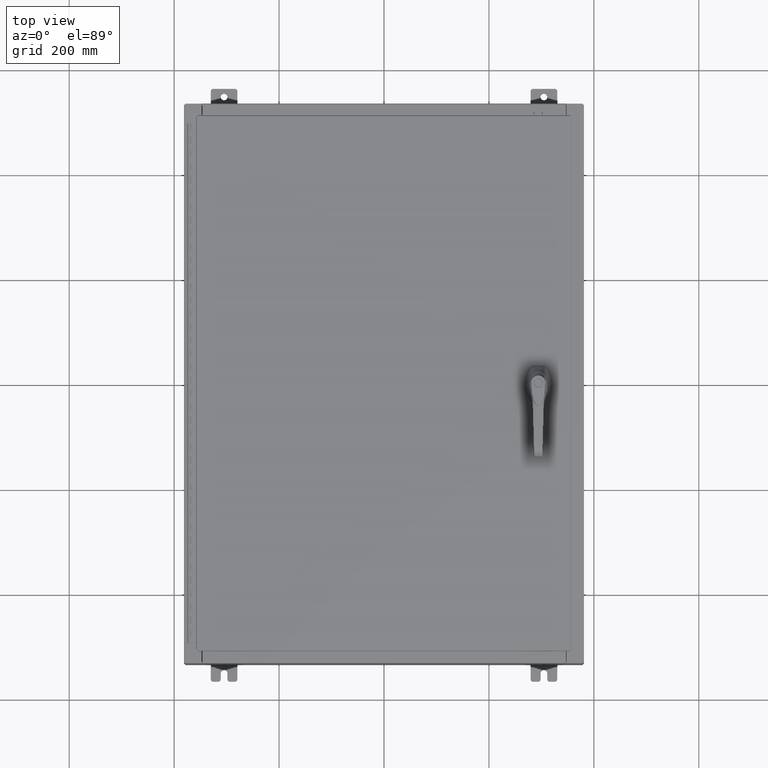
[diagram: clean part render]
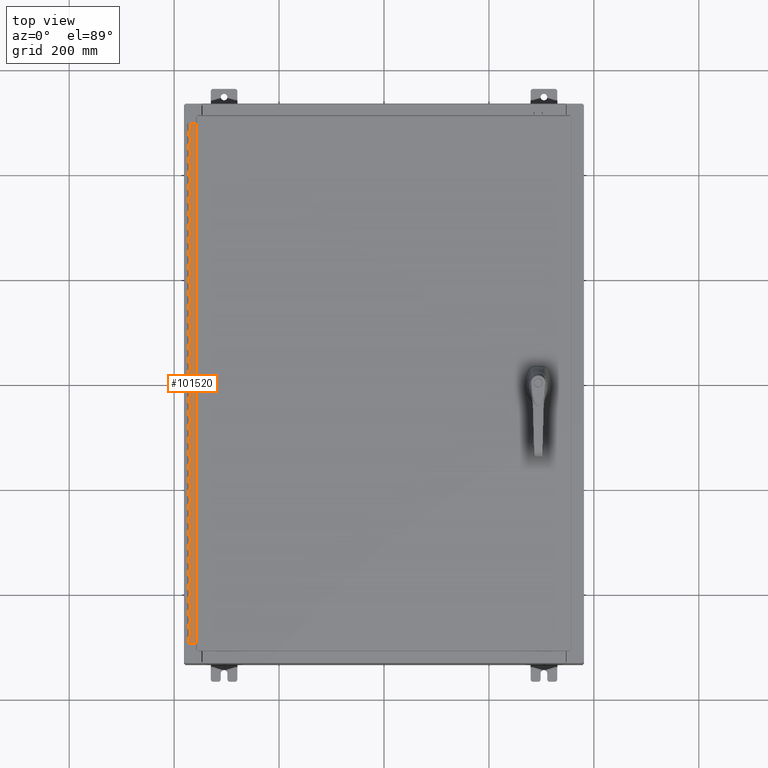
[diagram: same view with one face highlighted and labeled with its STEP entity id]
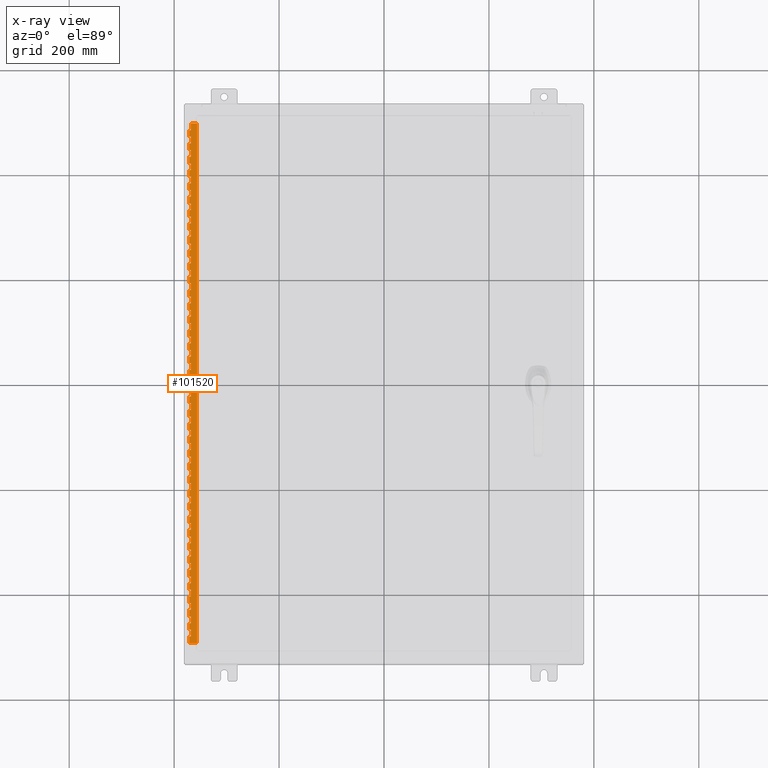
[diagram: x-ray of the same camera — body ghosted, the highlighted face saturated]
A machine part, top view. The second image highlights one B-rep face of the part: STEP entity #101520.
The next image is the same camera in x-ray: the body ghosted, the highlighted face saturated — about 0% of this face is hidden behind the body in this view.
In plain terms, the highlighted planar face has unit normal (-0, -0, 1).
Its self-contained STEP definition (entity closure, byte-faithful):
#23 = ORIENTED_EDGE ( 'NONE', *, *, #75164, .F. ) ;
#49 = EDGE_CURVE ( 'NONE', #108452, #123431, #20670, .T. ) ;
#235 = CARTESIAN_POINT ( 'NONE',  ( -0.6869999999999978300, 0.6754999999999996600, -39.00000000000000000 ) ) ;
#342 = CARTESIAN_POINT ( 'NONE',  ( -0.6869999999999978300, 0.6754999999999996600, -21.00000000000000000 ) ) ;
#500 = LINE ( 'NONE', #33148, #103181 ) ;
#501 = CARTESIAN_POINT ( 'NONE',  ( -0.6869999999999982800, 0.5504999999999997700, -11.50000000000000000 ) ) ;
#515 = CARTESIAN_POINT ( 'NONE',  ( -0.6869999999999973900, 0.8004999999999995500, -23.99999999999999600 ) ) ;
#597 = LINE ( 'NONE', #61922, #56529 ) ;
#665 = ORIENTED_EDGE ( 'NONE', *, *, #85074, .T. ) ;
#974 = LINE ( 'NONE', #39764, #27423 ) ;
#1005 = ORIENTED_EDGE ( 'NONE', *, *, #101149, .F. ) ;
#1051 = ORIENTED_EDGE ( 'NONE', *, *, #123993, .F. ) ;
#1095 = VECTOR ( 'NONE', #113829, 39.37007874015748100 ) ;
#1202 = ORIENTED_EDGE ( 'NONE', *, *, #42683, .F. ) ;
#1315 = CARTESIAN_POINT ( 'NONE',  ( -0.6869999999999973900, 0.8004999999999995500, -8.500000000000000000 ) ) ;
#1472 = EDGE_CURVE ( 'NONE', #6158, #19818, #65482, .T. ) ;
#1576 = DIRECTION ( 'NONE',  ( 3.389037039080723100E-015, 1.000000000000000000, -0.0000000000000000000 ) ) ;
#1666 = ORIENTED_EDGE ( 'NONE', *, *, #11413, .F. ) ;
#1680 = DIRECTION ( 'NONE',  ( 0.0000000000000000000, 0.0000000000000000000, 1.000000000000000000 ) ) ;
#1942 = CARTESIAN_POINT ( 'NONE',  ( -0.6869999999999982800, 0.5504999999999997700, -15.50000000000000000 ) ) ;
#1978 = CARTESIAN_POINT ( 'NONE',  ( -0.6869999999999982800, 0.5504999999999997700, -7.000000000000000000 ) ) ;
#2244 = CARTESIAN_POINT ( 'NONE',  ( -0.6869999999999978300, 0.6754999999999996600, -31.50000000000000400 ) ) ;
#2398 = ORIENTED_EDGE ( 'NONE', *, *, #21324, .F. ) ;
#2541 = ORIENTED_EDGE ( 'NONE', *, *, #90944, .F. ) ;
#2593 = DIRECTION ( 'NONE',  ( -3.389037039080723100E-015, -1.000000000000000000, 0.0000000000000000000 ) ) ;
#2639 = CARTESIAN_POINT ( 'NONE',  ( -0.6869999999999982800, 0.5504999999999997700, -21.00000000000000000 ) ) ;
#2697 = ORIENTED_EDGE ( 'NONE', *, *, #72590, .F. ) ;
#2922 = ORIENTED_EDGE ( 'NONE', *, *, #73407, .F. ) ;
#2962 = LINE ( 'NONE', #82962, #32504 ) ;
#2967 = EDGE_CURVE ( 'NONE', #97350, #74747, #9322, .T. ) ;
#3008 = EDGE_CURVE ( 'NONE', #91374, #39341, #6164, .T. ) ;
#3049 = DIRECTION ( 'NONE',  ( 3.369016658928398200E-015, 1.000000000000000000, 0.0000000000000000000 ) ) ;
#3207 = DIRECTION ( 'NONE',  ( -3.389037039080723100E-015, -1.000000000000000000, 0.0000000000000000000 ) ) ;
#3302 = ORIENTED_EDGE ( 'NONE', *, *, #98000, .F. ) ;
#3398 = VERTEX_POINT ( 'NONE', #115810 ) ;
#3491 = CARTESIAN_POINT ( 'NONE',  ( -0.6869999999999973900, 0.8004999999999995500, -38.50000000000000000 ) ) ;
#3597 = ORIENTED_EDGE ( 'NONE', *, *, #3774, .F. ) ;
#3624 = VECTOR ( 'NONE', #124825, 39.37007874015748100 ) ;
#3646 = CARTESIAN_POINT ( 'NONE',  ( -0.6869999999999982800, 0.5504999999999997700, -16.00000000000000000 ) ) ;
#3672 = CARTESIAN_POINT ( 'NONE',  ( -0.6869999999999982800, 0.5504999999999997700, -2.500000000000000000 ) ) ;
#3716 = CARTESIAN_POINT ( 'NONE',  ( -0.6869999999999982800, 0.5504999999999997700, -22.50000000000000000 ) ) ;
#3774 = EDGE_CURVE ( 'NONE', #113627, #25241, #82223, .T. ) ;
#3943 = VECTOR ( 'NONE', #30174, 39.37007874015748100 ) ;
#4054 = EDGE_CURVE ( 'NONE', #11448, #123751, #119493, .T. ) ;
#4175 = VECTOR ( 'NONE', #68928, 39.37007874015748100 ) ;
#4407 = LINE ( 'NONE', #89384, #54122 ) ;
#4430 = CARTESIAN_POINT ( 'NONE',  ( -0.6869999999999973900, 0.8004999999999995500, -21.00000000000000000 ) ) ;
#4629 = EDGE_CURVE ( 'NONE', #12913, #23757, #52486, .T. ) ;
#4710 = LINE ( 'NONE', #7655, #28063 ) ;
#4731 = EDGE_CURVE ( 'NONE', #64813, #46829, #122428, .T. ) ;
#4741 = LINE ( 'NONE', #5946, #54438 ) ;
#4966 = LINE ( 'NONE', #67205, #110764 ) ;
#5011 = CARTESIAN_POINT ( 'NONE',  ( -0.6869999999999982800, 0.5504999999999997700, -18.50000000000000000 ) ) ;
#5028 = VECTOR ( 'NONE', #81285, 39.37007874015748100 ) ;
#5148 = LINE ( 'NONE', #41079, #81350 ) ;
#5276 = CARTESIAN_POINT ( 'NONE',  ( -0.6869999999999982800, 0.5504999999999997700, -14.49999999999999800 ) ) ;
#5342 = DIRECTION ( 'NONE',  ( 3.389037039080723100E-015, 1.000000000000000000, -0.0000000000000000000 ) ) ;
#5363 = VECTOR ( 'NONE', #106376, 39.37007874015748100 ) ;
#5477 = VERTEX_POINT ( 'NONE', #342 ) ;
#5552 = CARTESIAN_POINT ( 'NONE',  ( -0.6869999999999978300, 0.6754999999999996600, -11.99999999999999800 ) ) ;
#5569 = VERTEX_POINT ( 'NONE', #41472 ) ;
#5690 = LINE ( 'NONE', #18922, #56748 ) ;
#5745 = ORIENTED_EDGE ( 'NONE', *, *, #126798, .T. ) ;
#5865 = ORIENTED_EDGE ( 'NONE', *, *, #27945, .T. ) ;
#5915 = VECTOR ( 'NONE', #96123, 39.37007874015748100 ) ;
#5924 = VERTEX_POINT ( 'NONE', #92032 ) ;
#5946 = CARTESIAN_POINT ( 'NONE',  ( -0.6869999999999982800, 0.5504999999999997700, -18.50000000000000000 ) ) ;
#5968 = VECTOR ( 'NONE', #2593, 39.37007874015748100 ) ;
#6072 = EDGE_CURVE ( 'NONE', #118690, #27115, #67911, .T. ) ;
#6148 = CARTESIAN_POINT ( 'NONE',  ( -0.6869999999999978300, 0.6754999999999996600, -39.00000000000000000 ) ) ;
#6158 = VERTEX_POINT ( 'NONE', #38347 ) ;
#6164 = LINE ( 'NONE', #56915, #26373 ) ;
#6201 = CARTESIAN_POINT ( 'NONE',  ( -0.6869999999999982800, 0.5504999999999997700, -37.50000000000000000 ) ) ;
#6314 = VECTOR ( 'NONE', #14497, 39.37007874015748100 ) ;
#6328 = VERTEX_POINT ( 'NONE', #127376 ) ;
#6432 = DIRECTION ( 'NONE',  ( 0.0000000000000000000, -0.0000000000000000000, -1.000000000000000000 ) ) ;
#6551 = VERTEX_POINT ( 'NONE', #17374 ) ;
#6623 = CARTESIAN_POINT ( 'NONE',  ( -0.6869999999999978300, 0.6754999999999996600, -13.50000000000000000 ) ) ;
#6659 = EDGE_CURVE ( 'NONE', #59065, #6328, #39843, .T. ) ;
#6796 = LINE ( 'NONE', #25377, #82926 ) ;
#6829 = ORIENTED_EDGE ( 'NONE', *, *, #106223, .T. ) ;
#6933 = DIRECTION ( 'NONE',  ( 0.0000000000000000000, -0.0000000000000000000, -1.000000000000000000 ) ) ;
#6956 = EDGE_CURVE ( 'NONE', #126481, #66900, #18051, .T. ) ;
#7024 = LINE ( 'NONE', #100627, #30311 ) ;
#7240 = DIRECTION ( 'NONE',  ( -3.389037039080723100E-015, -1.000000000000000000, 0.0000000000000000000 ) ) ;
#7381 = EDGE_CURVE ( 'NONE', #51433, #102011, #66124, .T. ) ;
#7450 = VERTEX_POINT ( 'NONE', #3716 ) ;
#7459 = ORIENTED_EDGE ( 'NONE', *, *, #63313, .F. ) ;
#7516 = EDGE_CURVE ( 'NONE', #80312, #15142, #5690, .T. ) ;
#7655 = CARTESIAN_POINT ( 'NONE',  ( -0.6869999999999978300, 0.6754999999999996600, -39.00000000000000000 ) ) ;
#7677 = VECTOR ( 'NONE', #69400, 39.37007874015748100 ) ;
#7687 = DIRECTION ( 'NONE',  ( 0.0000000000000000000, 0.0000000000000000000, 1.000000000000000000 ) ) ;
#7749 = ORIENTED_EDGE ( 'NONE', *, *, #99410, .F. ) ;
#7903 = DIRECTION ( 'NONE',  ( -3.389037039080723100E-015, -1.000000000000000000, 0.0000000000000000000 ) ) ;
#7911 = VERTEX_POINT ( 'NONE', #105894 ) ;
#8223 = VERTEX_POINT ( 'NONE', #116956 ) ;
#8378 = LINE ( 'NONE', #30241, #34741 ) ;
#8489 = LINE ( 'NONE', #42670, #78417 ) ;
#8513 = VECTOR ( 'NONE', #128435, 39.37007874015748100 ) ;
#8684 = DIRECTION ( 'NONE',  ( 0.0000000000000000000, 0.0000000000000000000, 1.000000000000000000 ) ) ;
#8827 = LINE ( 'NONE', #12833, #32075 ) ;
#8832 = LINE ( 'NONE', #55576, #102121 ) ;
#8898 = ORIENTED_EDGE ( 'NONE', *, *, #106617, .F. ) ;
#8971 = CARTESIAN_POINT ( 'NONE',  ( -0.6869999999999973900, 0.8004999999999995500, -25.50000000000000400 ) ) ;
#8994 = VECTOR ( 'NONE', #88188, 39.37007874015748100 ) ;
#9010 = VERTEX_POINT ( 'NONE', #14637 ) ;
#9028 = VERTEX_POINT ( 'NONE', #71172 ) ;
#9101 = CARTESIAN_POINT ( 'NONE',  ( -0.6869999999999978300, 0.6754999999999996600, -17.00000000000000000 ) ) ;
#9131 = VECTOR ( 'NONE', #110355, 39.37007874015748100 ) ;
#9262 = CARTESIAN_POINT ( 'NONE',  ( -0.6869999999999973900, 0.8004999999999995500, -26.00000000000000000 ) ) ;
#9305 = VECTOR ( 'NONE', #18804, 39.37007874015748100 ) ;
#9315 = EDGE_CURVE ( 'NONE', #103554, #15898, #19450, .T. ) ;
#9322 = LINE ( 'NONE', #123693, #58989 ) ;
#9325 = ORIENTED_EDGE ( 'NONE', *, *, #72477, .F. ) ;
#9406 = CARTESIAN_POINT ( 'NONE',  ( -0.6869999999999978300, 0.6754999999999996600, -39.00000000000000000 ) ) ;
#9752 = VERTEX_POINT ( 'NONE', #5011 ) ;
#9853 = CARTESIAN_POINT ( 'NONE',  ( -0.6869999999999978300, 0.6754999999999996600, -6.499999999999999100 ) ) ;
#9879 = LINE ( 'NONE', #59664, #109407 ) ;
#10047 = DIRECTION ( 'NONE',  ( -3.389037039080723100E-015, -1.000000000000000000, 0.0000000000000000000 ) ) ;
#10060 = EDGE_CURVE ( 'NONE', #7450, #127128, #8489, .T. ) ;
#10168 = ORIENTED_EDGE ( 'NONE', *, *, #54112, .T. ) ;
#10267 = ORIENTED_EDGE ( 'NONE', *, *, #111342, .T. ) ;
#10300 = DIRECTION ( 'NONE',  ( 0.0000000000000000000, -0.0000000000000000000, -1.000000000000000000 ) ) ;
#10330 = VERTEX_POINT ( 'NONE', #26576 ) ;
#10404 = DIRECTION ( 'NONE',  ( 0.0000000000000000000, 0.0000000000000000000, 1.000000000000000000 ) ) ;
#10583 = VECTOR ( 'NONE', #109239, 39.37007874015748100 ) ;
#10694 = VECTOR ( 'NONE', #109078, 39.37007874015748100 ) ;
#10730 = DIRECTION ( 'NONE',  ( 0.0000000000000000000, -0.0000000000000000000, -1.000000000000000000 ) ) ;
#10831 = ORIENTED_EDGE ( 'NONE', *, *, #9315, .F. ) ;
#10948 = EDGE_CURVE ( 'NONE', #46829, #6158, #84504, .T. ) ;
#11068 = EDGE_CURVE ( 'NONE', #80312, #113266, #98556, .T. ) ;
#11152 = DIRECTION ( 'NONE',  ( -3.389037039080723100E-015, -1.000000000000000000, 0.0000000000000000000 ) ) ;
#11157 = EDGE_CURVE ( 'NONE', #42284, #123684, #19210, .T. ) ;
#11234 = ORIENTED_EDGE ( 'NONE', *, *, #128757, .F. ) ;
#11272 = LINE ( 'NONE', #46869, #93665 ) ;
#11353 = ORIENTED_EDGE ( 'NONE', *, *, #2967, .F. ) ;
#11363 = CARTESIAN_POINT ( 'NONE',  ( -0.6869999999999973900, 0.8004999999999995500, -20.50000000000000400 ) ) ;
#11379 = ORIENTED_EDGE ( 'NONE', *, *, #50408, .F. ) ;
#11407 = DIRECTION ( 'NONE',  ( 3.389037039080723100E-015, 1.000000000000000000, -0.0000000000000000000 ) ) ;
#11413 = EDGE_CURVE ( 'NONE', #21464, #65408, #87622, .T. ) ;
#11448 = VERTEX_POINT ( 'NONE', #42688 ) ;
#11594 = CARTESIAN_POINT ( 'NONE',  ( -0.6869999999999973900, 0.8004999999999995500, -13.50000000000000000 ) ) ;
#11636 = CARTESIAN_POINT ( 'NONE',  ( -0.6869999999999998300, 0.07549999999999991400, 0.0000000000000000000 ) ) ;
#11661 = EDGE_CURVE ( 'NONE', #106233, #57070, #42444, .T. ) ;
#11741 = EDGE_CURVE ( 'NONE', #78481, #48916, #12926, .T. ) ;
#11966 = ORIENTED_EDGE ( 'NONE', *, *, #95940, .F. ) ;
#11979 = VECTOR ( 'NONE', #21471, 39.37007874015748100 ) ;
#11995 = CARTESIAN_POINT ( 'NONE',  ( -0.6869999999999978300, 0.6754999999999996600, -7.499999999999999100 ) ) ;
#12059 = LINE ( 'NONE', #51519, #94465 ) ;
#12245 = FACE_OUTER_BOUND ( 'NONE', #16423, .T. ) ;
#12296 = EDGE_CURVE ( 'NONE', #32912, #58050, #90643, .T. ) ;
#12390 = CARTESIAN_POINT ( 'NONE',  ( -0.6869999999999982800, 0.5504999999999997700, -23.50000000000000000 ) ) ;
#12408 = LINE ( 'NONE', #87890, #38828 ) ;
#12658 = CARTESIAN_POINT ( 'NONE',  ( -0.6869999999999978300, 0.6754999999999996600, -28.99999999999999600 ) ) ;
#12833 = CARTESIAN_POINT ( 'NONE',  ( -0.6869999999999973900, 0.8004999999999995500, -19.00000000000000000 ) ) ;
#12913 = VERTEX_POINT ( 'NONE', #53223 ) ;
#12926 = LINE ( 'NONE', #45674, #59509 ) ;
#13400 = EDGE_CURVE ( 'NONE', #64895, #51433, #64148, .T. ) ;
#13435 = CARTESIAN_POINT ( 'NONE',  ( -0.6869999999999982800, 0.5504999999999997700, -31.50000000000000400 ) ) ;
#13551 = LINE ( 'NONE', #127071, #113036 ) ;
#13701 = DIRECTION ( 'NONE',  ( 0.0000000000000000000, -0.0000000000000000000, -1.000000000000000000 ) ) ;
#13853 = LINE ( 'NONE', #3491, #37133 ) ;
#13897 = VECTOR ( 'NONE', #16487, 39.37007874015748100 ) ;
#13948 = ORIENTED_EDGE ( 'NONE', *, *, #13400, .F. ) ;
#14032 = ORIENTED_EDGE ( 'NONE', *, *, #58765, .F. ) ;
#14080 = CARTESIAN_POINT ( 'NONE',  ( -0.6869999999999982800, 0.5504999999999997700, -33.50000000000000000 ) ) ;
#14163 = CARTESIAN_POINT ( 'NONE',  ( -0.6869999999999982800, 0.5504999999999997700, -33.00000000000000000 ) ) ;
#14395 = LINE ( 'NONE', #83249, #90606 ) ;
#14497 = DIRECTION ( 'NONE',  ( 0.0000000000000000000, 0.0000000000000000000, 1.000000000000000000 ) ) ;
#14637 = CARTESIAN_POINT ( 'NONE',  ( -0.6869999999999982800, 0.5504999999999997700, -29.99999999999999600 ) ) ;
#14820 = VERTEX_POINT ( 'NONE', #45003 ) ;
#14845 = VERTEX_POINT ( 'NONE', #95466 ) ;
#14922 = ORIENTED_EDGE ( 'NONE', *, *, #22100, .F. ) ;
#15142 = VERTEX_POINT ( 'NONE', #99817 ) ;
#15240 = EDGE_CURVE ( 'NONE', #77361, #85965, #124470, .T. ) ;
#15321 = CARTESIAN_POINT ( 'NONE',  ( -0.6869999999999973900, 0.8004999999999995500, -9.500000000000000000 ) ) ;
#15414 = VERTEX_POINT ( 'NONE', #43982 ) ;
#15688 = CARTESIAN_POINT ( 'NONE',  ( -0.6869999999999973900, 0.8004999999999995500, -16.00000000000000000 ) ) ;
#15843 = DIRECTION ( 'NONE',  ( 0.0000000000000000000, 0.0000000000000000000, 1.000000000000000000 ) ) ;
#15898 = VERTEX_POINT ( 'NONE', #112527 ) ;
#16073 = VECTOR ( 'NONE', #67998, 39.37007874015748100 ) ;
#16219 = LINE ( 'NONE', #123136, #115703 ) ;
#16392 = CARTESIAN_POINT ( 'NONE',  ( -0.6869999999999978300, 0.6754999999999996600, -38.50000000000000000 ) ) ;
#16423 = EDGE_LOOP ( 'NONE', ( #72521, #95945, #103791, #1005, #5745, #51334, #75557, #45990, #128744, #116703, #105295, #120327, #120928, #101233, #86243, #82511, #124221, #86743, #47817, #2922, #37098, #41958, #105743, #30121, #88904, #20461, #48564, #32965, #60014, #65475, #14922, #49051, #67666, #68717, #1051, #23, #19909, #2697, #118861, #96200, #6829, #120440, #128417, #113546, #46591, #123384, #77003, #80112, #127787, #18531, #52786, #44137, #5865, #7459, #3302, #91461, #10267, #61884, #123746, #104794, #665, #54507, #38639, #55654, #60755, #52603, #96861, #37064, #123910, #31096, #119375, #11379, #60692, #1202, #75806, #7749, #50388, #94037, #64097, #49177, #111809, #76218, #30284, #11234, #100886, #127457, #38429, #2398, #51901, #11353, #14032, #54114, #76342, #68008, #3597, #116043, #10168, #118785, #9325, #30272, #123176, #87719, #115968, #2541, #100281, #84011, #109324, #40080, #39167, #81905, #112236, #35926, #80211, #90861, #71538, #73823, #38948, #18714, #63574, #27445, #24449, #39102, #61425, #72336, #41949, #25667, #43774, #53820, #38517, #45872, #128832, #37397, #72535, #102642, #99057, #10831, #74748, #120861, #68456, #8898, #75243, #85480, #24375, #13948, #68778, #26622, #36025, #44389, #64322, #51036, #11966, #94216, #50981, #128045, #1666, #106439, #101335, #73780 ) ) ;
#16487 = DIRECTION ( 'NONE',  ( 0.0000000000000000000, 0.0000000000000000000, 1.000000000000000000 ) ) ;
#16528 = CARTESIAN_POINT ( 'NONE',  ( -0.6869999999999978300, 0.6754999999999996600, -39.00000000000000000 ) ) ;
#17054 = CARTESIAN_POINT ( 'NONE',  ( -0.6869999999999998300, 0.07549999999999991400, -39.00000000000000000 ) ) ;
#17123 = DIRECTION ( 'NONE',  ( 0.0000000000000000000, 0.0000000000000000000, 1.000000000000000000 ) ) ;
#17298 = VERTEX_POINT ( 'NONE', #46793 ) ;
#17369 = CARTESIAN_POINT ( 'NONE',  ( -0.6869999999999982800, 0.5504999999999997700, -21.50000000000000400 ) ) ;
#17374 = CARTESIAN_POINT ( 'NONE',  ( -0.6869999999999978300, 0.6754999999999996600, -11.00000000000000000 ) ) ;
#17499 = CARTESIAN_POINT ( 'NONE',  ( -0.6869999999999982800, 0.5504999999999997700, -16.50000000000000000 ) ) ;
#17642 = LINE ( 'NONE', #101472, #93826 ) ;
#17649 = CARTESIAN_POINT ( 'NONE',  ( -0.6869999999999978300, 0.6754999999999996600, -34.00000000000000000 ) ) ;
#17685 = CARTESIAN_POINT ( 'NONE',  ( -0.6869999999999982800, 0.5504999999999997700, -39.00000000000000000 ) ) ;
#17913 = CARTESIAN_POINT ( 'NONE',  ( -0.6869999999999973900, 0.8004999999999995500, -0.5000000000000000000 ) ) ;
#17945 = CARTESIAN_POINT ( 'NONE',  ( -0.6869999999999982800, 0.5504999999999997700, -17.00000000000000000 ) ) ;
#18051 = LINE ( 'NONE', #98512, #120622 ) ;
#18209 = VECTOR ( 'NONE', #45537, 39.37007874015748100 ) ;
#18277 = EDGE_CURVE ( 'NONE', #20355, #48543, #57151, .T. ) ;
#18407 = VECTOR ( 'NONE', #108735, 39.37007874015748100 ) ;
#18531 = ORIENTED_EDGE ( 'NONE', *, *, #72202, .F. ) ;
#18687 = CARTESIAN_POINT ( 'NONE',  ( -0.6869999999999978300, 0.6754999999999996600, -14.99999999999999800 ) ) ;
#18713 = VERTEX_POINT ( 'NONE', #47410 ) ;
#18714 = ORIENTED_EDGE ( 'NONE', *, *, #55454, .F. ) ;
#18754 = VECTOR ( 'NONE', #68929, 39.37007874015748100 ) ;
#18804 = DIRECTION ( 'NONE',  ( 0.0000000000000000000, -0.0000000000000000000, -1.000000000000000000 ) ) ;
#18831 = VECTOR ( 'NONE', #72271, 39.37007874015748100 ) ;
#18881 = VECTOR ( 'NONE', #54711, 39.37007874015748100 ) ;
#18922 = CARTESIAN_POINT ( 'NONE',  ( -0.6869999999999978300, 0.6754999999999996600, -39.00000000000000000 ) ) ;
#19097 = CARTESIAN_POINT ( 'NONE',  ( -0.6869999999999973900, 0.8004999999999995500, -14.00000000000000000 ) ) ;
#19192 = EDGE_CURVE ( 'NONE', #102011, #37739, #80416, .T. ) ;
#19210 = LINE ( 'NONE', #121451, #22311 ) ;
#19352 = EDGE_CURVE ( 'NONE', #56218, #124482, #94397, .T. ) ;
#19370 = DIRECTION ( 'NONE',  ( 3.389037039080723100E-015, 1.000000000000000000, -0.0000000000000000000 ) ) ;
#19376 = VERTEX_POINT ( 'NONE', #37717 ) ;
#19398 = DIRECTION ( 'NONE',  ( 0.0000000000000000000, 0.0000000000000000000, 1.000000000000000000 ) ) ;
#19450 = LINE ( 'NONE', #91604, #95636 ) ;
#19816 = CARTESIAN_POINT ( 'NONE',  ( -0.6869999999999978300, 0.6754999999999996600, -39.00000000000000000 ) ) ;
#19818 = VERTEX_POINT ( 'NONE', #41465 ) ;
#19909 = ORIENTED_EDGE ( 'NONE', *, *, #4629, .T. ) ;
#19915 = VECTOR ( 'NONE', #75293, 39.37007874015748100 ) ;
#19994 = VECTOR ( 'NONE', #104220, 39.37007874015748100 ) ;
#20033 = CARTESIAN_POINT ( 'NONE',  ( -0.6869999999999973900, 0.8004999999999995500, -12.49999999999999800 ) ) ;
#20168 = EDGE_CURVE ( 'NONE', #58050, #37334, #47586, .T. ) ;
#20355 = VERTEX_POINT ( 'NONE', #106022 ) ;
#20414 = PLANE ( 'NONE',  #59869 ) ;
#20461 = ORIENTED_EDGE ( 'NONE', *, *, #83279, .F. ) ;
#20580 = CARTESIAN_POINT ( 'NONE',  ( -0.6869999999999978300, 0.6754999999999996600, -21.50000000000000400 ) ) ;
#20641 = DIRECTION ( 'NONE',  ( 0.0000000000000000000, -0.0000000000000000000, -1.000000000000000000 ) ) ;
#20670 = LINE ( 'NONE', #128817, #73471 ) ;
#21170 = LINE ( 'NONE', #84306, #123670 ) ;
#21324 = EDGE_CURVE ( 'NONE', #62115, #112022, #52056, .T. ) ;
#21416 = LINE ( 'NONE', #16528, #33821 ) ;
#21464 = VERTEX_POINT ( 'NONE', #112655 ) ;
#21471 = DIRECTION ( 'NONE',  ( 0.0000000000000000000, 0.0000000000000000000, 1.000000000000000000 ) ) ;
#21603 = DIRECTION ( 'NONE',  ( 3.389037039080723100E-015, 1.000000000000000000, -0.0000000000000000000 ) ) ;
#21682 = CARTESIAN_POINT ( 'NONE',  ( -0.6869999999999982800, 0.5504999999999997700, -28.99999999999999600 ) ) ;
#21756 = CARTESIAN_POINT ( 'NONE',  ( -0.6869999999999982800, 0.5504999999999997700, -20.50000000000000400 ) ) ;
#21831 = VECTOR ( 'NONE', #19370, 39.37007874015748100 ) ;
#21966 = DIRECTION ( 'NONE',  ( 0.0000000000000000000, -0.0000000000000000000, -1.000000000000000000 ) ) ;
#22100 = EDGE_CURVE ( 'NONE', #51376, #91374, #64423, .T. ) ;
#22237 = VECTOR ( 'NONE', #97511, 39.37007874015748100 ) ;
#22311 = VECTOR ( 'NONE', #51899, 39.37007874015748100 ) ;
#22423 = DIRECTION ( 'NONE',  ( -3.389037039080723100E-015, -1.000000000000000000, 0.0000000000000000000 ) ) ;
#22476 = EDGE_CURVE ( 'NONE', #27378, #90132, #597, .T. ) ;
#22609 = VECTOR ( 'NONE', #46321, 39.37007874015748100 ) ;
#23040 = VECTOR ( 'NONE', #47428, 39.37007874015748100 ) ;
#23275 = CARTESIAN_POINT ( 'NONE',  ( -0.6869999999999998300, 0.07549999999999991400, -39.00000000000000000 ) ) ;
#23339 = CARTESIAN_POINT ( 'NONE',  ( -0.6869999999999978300, 0.6754999999999996600, -28.00000000000000000 ) ) ;
#23354 = LINE ( 'NONE', #53951, #125907 ) ;
#23756 = VECTOR ( 'NONE', #88590, 39.37007874015748100 ) ;
#23757 = VERTEX_POINT ( 'NONE', #50494 ) ;
#23909 = DIRECTION ( 'NONE',  ( -3.389037039080723100E-015, -1.000000000000000000, 0.0000000000000000000 ) ) ;
#24019 = VECTOR ( 'NONE', #100521, 39.37007874015748100 ) ;
#24180 = CARTESIAN_POINT ( 'NONE',  ( -0.6869999999999978300, 0.6754999999999996600, -10.00000000000000000 ) ) ;
#24233 = VECTOR ( 'NONE', #93034, 39.37007874015748100 ) ;
#24375 = ORIENTED_EDGE ( 'NONE', *, *, #7381, .F. ) ;
#24449 = ORIENTED_EDGE ( 'NONE', *, *, #127164, .T. ) ;
#24504 = EDGE_CURVE ( 'NONE', #62115, #74747, #46367, .T. ) ;
#24543 = VECTOR ( 'NONE', #41601, 39.37007874015748100 ) ;
#24658 = VERTEX_POINT ( 'NONE', #95946 ) ;
#25068 = VERTEX_POINT ( 'NONE', #11995 ) ;
#25241 = VERTEX_POINT ( 'NONE', #3646 ) ;
#25299 = DIRECTION ( 'NONE',  ( -3.389037039080723100E-015, -1.000000000000000000, 0.0000000000000000000 ) ) ;
#25377 = CARTESIAN_POINT ( 'NONE',  ( -0.6869999999999978300, 0.6754999999999996600, -39.00000000000000000 ) ) ;
#25519 = VERTEX_POINT ( 'NONE', #116568 ) ;
#25654 = DIRECTION ( 'NONE',  ( 3.389037039080723100E-015, 1.000000000000000000, -0.0000000000000000000 ) ) ;
#25667 = ORIENTED_EDGE ( 'NONE', *, *, #54621, .F. ) ;
#25690 = VERTEX_POINT ( 'NONE', #501 ) ;
#26031 = LINE ( 'NONE', #19097, #128594 ) ;
#26109 = CARTESIAN_POINT ( 'NONE',  ( -0.6869999999999982800, 0.5504999999999997700, -9.500000000000000000 ) ) ;
#26121 = VERTEX_POINT ( 'NONE', #106078 ) ;
#26373 = VECTOR ( 'NONE', #78005, 39.37007874015748100 ) ;
#26414 = CARTESIAN_POINT ( 'NONE',  ( -0.6869999999999982800, 0.5504999999999997700, -1.499999999999999800 ) ) ;
#26576 = CARTESIAN_POINT ( 'NONE',  ( -0.6869999999999982800, 0.5504999999999997700, -34.50000000000000000 ) ) ;
#26622 = ORIENTED_EDGE ( 'NONE', *, *, #54554, .F. ) ;
#26651 = VERTEX_POINT ( 'NONE', #63766 ) ;
#27072 = VECTOR ( 'NONE', #126568, 39.37007874015748100 ) ;
#27115 = VERTEX_POINT ( 'NONE', #88978 ) ;
#27148 = VERTEX_POINT ( 'NONE', #128830 ) ;
#27205 = EDGE_CURVE ( 'NONE', #40937, #101545, #53686, .T. ) ;
#27219 = VECTOR ( 'NONE', #1680, 39.37007874015748100 ) ;
#27329 = CARTESIAN_POINT ( 'NONE',  ( -0.6869999999999973900, 0.8004999999999995500, -31.50000000000000400 ) ) ;
#27378 = VERTEX_POINT ( 'NONE', #92360 ) ;
#27390 = CARTESIAN_POINT ( 'NONE',  ( -0.6869999999999973900, 0.8004999999999995500, -18.50000000000000000 ) ) ;
#27423 = VECTOR ( 'NONE', #7240, 39.37007874015748100 ) ;
#27424 = EDGE_CURVE ( 'NONE', #65531, #61926, #114356, .T. ) ;
#27445 = ORIENTED_EDGE ( 'NONE', *, *, #11661, .F. ) ;
#27459 = CARTESIAN_POINT ( 'NONE',  ( -0.6869999999999982800, 0.5504999999999997700, -25.50000000000000400 ) ) ;
#27597 = EDGE_CURVE ( 'NONE', #87748, #81941, #75437, .T. ) ;
#27826 = CARTESIAN_POINT ( 'NONE',  ( -0.6869999999999973900, 0.8004999999999995500, -35.00000000000000000 ) ) ;
#27945 = EDGE_CURVE ( 'NONE', #5924, #29338, #103426, .T. ) ;
#28063 = VECTOR ( 'NONE', #47159, 39.37007874015748100 ) ;
#28326 = EDGE_CURVE ( 'NONE', #59065, #7450, #104930, .T. ) ;
#28334 = CARTESIAN_POINT ( 'NONE',  ( -0.6869999999999978300, 0.6754999999999996600, -23.00000000000000000 ) ) ;
#28511 = CARTESIAN_POINT ( 'NONE',  ( -0.6869999999999982800, 0.5504999999999997700, -4.000000000000000000 ) ) ;
#28610 = VERTEX_POINT ( 'NONE', #9853 ) ;
#28638 = CARTESIAN_POINT ( 'NONE',  ( -0.6869999999999982800, 0.5504999999999997700, -30.50000000000000400 ) ) ;
#28672 = LINE ( 'NONE', #26414, #104891 ) ;
#28951 = DIRECTION ( 'NONE',  ( 3.389037039080723100E-015, 1.000000000000000000, -0.0000000000000000000 ) ) ;
#29182 = CARTESIAN_POINT ( 'NONE',  ( -0.6869999999999978300, 0.6754999999999996600, -9.000000000000000000 ) ) ;
#29338 = VERTEX_POINT ( 'NONE', #52261 ) ;
#29435 = EDGE_CURVE ( 'NONE', #96967, #47834, #500, .T. ) ;
#29667 = VECTOR ( 'NONE', #7903, 39.37007874015748100 ) ;
#29678 = VECTOR ( 'NONE', #89495, 39.37007874015748100 ) ;
#29845 = VECTOR ( 'NONE', #108886, 39.37007874015748100 ) ;
#29974 = EDGE_CURVE ( 'NONE', #67885, #18713, #124773, .T. ) ;
#30082 = LINE ( 'NONE', #84909, #3624 ) ;
#30121 = ORIENTED_EDGE ( 'NONE', *, *, #54908, .F. ) ;
#30139 = CARTESIAN_POINT ( 'NONE',  ( -0.6869999999999973900, 0.8004999999999995500, -17.50000000000000000 ) ) ;
#30174 = DIRECTION ( 'NONE',  ( -3.389037039080723100E-015, -1.000000000000000000, 0.0000000000000000000 ) ) ;
#30241 = CARTESIAN_POINT ( 'NONE',  ( -0.6869999999999982800, 0.5504999999999997700, -17.50000000000000000 ) ) ;
#30272 = ORIENTED_EDGE ( 'NONE', *, *, #22476, .F. ) ;
#30284 = ORIENTED_EDGE ( 'NONE', *, *, #111177, .F. ) ;
#30308 = CARTESIAN_POINT ( 'NONE',  ( -0.6869999999999978300, 0.6754999999999996600, -33.50000000000000000 ) ) ;
#30311 = VECTOR ( 'NONE', #110562, 39.37007874015748100 ) ;
#30344 = DIRECTION ( 'NONE',  ( 3.369016658928398200E-015, 1.000000000000000000, 0.0000000000000000000 ) ) ;
#30405 = EDGE_CURVE ( 'NONE', #33519, #118690, #101741, .T. ) ;
#30631 = CARTESIAN_POINT ( 'NONE',  ( -0.6869999999999982800, 0.5504999999999997700, -3.500000000000000000 ) ) ;
#30665 = VECTOR ( 'NONE', #75335, 39.37007874015748100 ) ;
#30777 = DIRECTION ( 'NONE',  ( 0.0000000000000000000, 0.0000000000000000000, 1.000000000000000000 ) ) ;
#31016 = CARTESIAN_POINT ( 'NONE',  ( -0.6869999999999978300, 0.6754999999999996600, -39.00000000000000000 ) ) ;
#31096 = ORIENTED_EDGE ( 'NONE', *, *, #84085, .F. ) ;
#31107 = VERTEX_POINT ( 'NONE', #80213 ) ;
#31171 = EDGE_CURVE ( 'NONE', #102038, #6551, #5148, .T. ) ;
#31646 = VECTOR ( 'NONE', #99882, 39.37007874015748100 ) ;
#31925 = EDGE_CURVE ( 'NONE', #93829, #113831, #61000, .T. ) ;
#32075 = VECTOR ( 'NONE', #42341, 39.37007874015748100 ) ;
#32148 = CARTESIAN_POINT ( 'NONE',  ( -0.6869999999999978300, 0.6754999999999996600, -22.50000000000000000 ) ) ;
#32165 = VERTEX_POINT ( 'NONE', #56359 ) ;
#32204 = CARTESIAN_POINT ( 'NONE',  ( -0.6869999999999978300, 0.6754999999999996600, -19.50000000000000000 ) ) ;
#32318 = LINE ( 'NONE', #105260, #5915 ) ;
#32434 = VECTOR ( 'NONE', #32742, 39.37007874015748100 ) ;
#32504 = VECTOR ( 'NONE', #92564, 39.37007874015748100 ) ;
#32695 = LINE ( 'NONE', #34433, #6314 ) ;
#32742 = DIRECTION ( 'NONE',  ( 0.0000000000000000000, -0.0000000000000000000, -1.000000000000000000 ) ) ;
#32769 = LINE ( 'NONE', #77321, #88839 ) ;
#32912 = VERTEX_POINT ( 'NONE', #87171 ) ;
#32965 = ORIENTED_EDGE ( 'NONE', *, *, #57508, .F. ) ;
#33148 = CARTESIAN_POINT ( 'NONE',  ( -0.6869999999999982800, 0.5504999999999997700, -10.50000000000000000 ) ) ;
#33228 = LINE ( 'NONE', #100852, #82985 ) ;
#33237 = LINE ( 'NONE', #92003, #82994 ) ;
#33260 = CARTESIAN_POINT ( 'NONE',  ( -0.6869999999999978300, 0.6754999999999996600, -15.50000000000000000 ) ) ;
#33508 = VECTOR ( 'NONE', #10730, 39.37007874015748100 ) ;
#33519 = VERTEX_POINT ( 'NONE', #17054 ) ;
#33539 = CARTESIAN_POINT ( 'NONE',  ( -0.6869999999999973900, 0.8004999999999995500, -5.000000000000000000 ) ) ;
#33821 = VECTOR ( 'NONE', #75598, 39.37007874015748100 ) ;
#33851 = VECTOR ( 'NONE', #75658, 39.37007874015748100 ) ;
#33881 = VERTEX_POINT ( 'NONE', #72135 ) ;
#34060 = LINE ( 'NONE', #68983, #7677 ) ;
#34180 = LINE ( 'NONE', #56689, #107330 ) ;
#34271 = CARTESIAN_POINT ( 'NONE',  ( -0.6869999999999973900, 0.8004999999999995500, -4.000000000000000000 ) ) ;
#34433 = CARTESIAN_POINT ( 'NONE',  ( -0.6869999999999978300, 0.6754999999999996600, -39.00000000000000000 ) ) ;
#34638 = CARTESIAN_POINT ( 'NONE',  ( -0.6869999999999982800, 0.5504999999999997700, -12.99999999999999800 ) ) ;
#34741 = VECTOR ( 'NONE', #10300, 39.37007874015748100 ) ;
#34884 = VERTEX_POINT ( 'NONE', #54873 ) ;
#34910 = EDGE_CURVE ( 'NONE', #103554, #19376, #44237, .T. ) ;
#35028 = VERTEX_POINT ( 'NONE', #20580 ) ;
#35211 = CARTESIAN_POINT ( 'NONE',  ( -0.6869999999999978300, 0.6754999999999996600, -39.00000000000000000 ) ) ;
#35497 = LINE ( 'NONE', #119845, #9131 ) ;
#35528 = VERTEX_POINT ( 'NONE', #65449 ) ;
#35547 = CARTESIAN_POINT ( 'NONE',  ( -0.6869999999999982800, 0.5504999999999997700, -4.500000000000000000 ) ) ;
#35594 = VERTEX_POINT ( 'NONE', #16392 ) ;
#35643 = EDGE_CURVE ( 'NONE', #57070, #104545, #49007, .T. ) ;
#35736 = EDGE_CURVE ( 'NONE', #95961, #67790, #45874, .T. ) ;
#35893 = DIRECTION ( 'NONE',  ( 0.0000000000000000000, -0.0000000000000000000, -1.000000000000000000 ) ) ;
#35926 = ORIENTED_EDGE ( 'NONE', *, *, #96732, .F. ) ;
#35938 = VECTOR ( 'NONE', #58639, 39.37007874015748100 ) ;
#36025 = ORIENTED_EDGE ( 'NONE', *, *, #27424, .F. ) ;
#36376 = DIRECTION ( 'NONE',  ( 3.389037039080723100E-015, 1.000000000000000000, -0.0000000000000000000 ) ) ;
#36570 = CARTESIAN_POINT ( 'NONE',  ( -0.6869999999999973900, 0.8004999999999995500, -35.50000000000000000 ) ) ;
#36704 = VECTOR ( 'NONE', #10404, 39.37007874015748100 ) ;
#36832 = LINE ( 'NONE', #8971, #63239 ) ;
#36869 = LINE ( 'NONE', #115196, #83509 ) ;
#36949 = LINE ( 'NONE', #39642, #10583 ) ;
#37064 = ORIENTED_EDGE ( 'NONE', *, *, #28326, .F. ) ;
#37093 = LINE ( 'NONE', #66629, #86853 ) ;
#37098 = ORIENTED_EDGE ( 'NONE', *, *, #83606, .T. ) ;
#37133 = VECTOR ( 'NONE', #102639, 39.37007874015748100 ) ;
#37334 = VERTEX_POINT ( 'NONE', #61494 ) ;
#37397 = ORIENTED_EDGE ( 'NONE', *, *, #124555, .F. ) ;
#37561 = LINE ( 'NONE', #70872, #87337 ) ;
#37635 = EDGE_CURVE ( 'NONE', #27378, #32165, #30082, .T. ) ;
#37647 = EDGE_CURVE ( 'NONE', #122491, #55352, #6796, .T. ) ;
#37717 = CARTESIAN_POINT ( 'NONE',  ( -0.6869999999999978300, 0.6754999999999996600, -5.000000000000000000 ) ) ;
#37739 = VERTEX_POINT ( 'NONE', #96235 ) ;
#37757 = VECTOR ( 'NONE', #65268, 39.37007874015748100 ) ;
#37774 = CARTESIAN_POINT ( 'NONE',  ( -0.6869999999999982800, 0.5504999999999997700, -1.000000000000000000 ) ) ;
#37780 = CARTESIAN_POINT ( 'NONE',  ( -0.6869999999999978300, 0.6754999999999996600, -39.00000000000000000 ) ) ;
#37838 = EDGE_CURVE ( 'NONE', #123684, #105220, #17642, .T. ) ;
#37901 = DIRECTION ( 'NONE',  ( 3.389037039080723100E-015, 1.000000000000000000, -0.0000000000000000000 ) ) ;
#38071 = CARTESIAN_POINT ( 'NONE',  ( -0.6869999999999982800, 0.5504999999999997700, -19.50000000000000000 ) ) ;
#38163 = VECTOR ( 'NONE', #13701, 39.37007874015748100 ) ;
#38347 = CARTESIAN_POINT ( 'NONE',  ( -0.6869999999999982800, 0.5504999999999997700, -24.99999999999999600 ) ) ;
#38429 = ORIENTED_EDGE ( 'NONE', *, *, #106605, .F. ) ;
#38517 = ORIENTED_EDGE ( 'NONE', *, *, #105459, .T. ) ;
#38631 = LINE ( 'NONE', #33539, #51066 ) ;
#38636 = EDGE_CURVE ( 'NONE', #15414, #39341, #14395, .T. ) ;
#38639 = ORIENTED_EDGE ( 'NONE', *, *, #84398, .F. ) ;
#38828 = VECTOR ( 'NONE', #37901, 39.37007874015748100 ) ;
#38948 = ORIENTED_EDGE ( 'NONE', *, *, #101532, .T. ) ;
#39102 = ORIENTED_EDGE ( 'NONE', *, *, #37838, .F. ) ;
#39136 = DIRECTION ( 'NONE',  ( 0.0000000000000000000, 0.0000000000000000000, 1.000000000000000000 ) ) ;
#39156 = CARTESIAN_POINT ( 'NONE',  ( -0.6869999999999982800, 0.5504999999999997700, -27.50000000000000000 ) ) ;
#39167 = ORIENTED_EDGE ( 'NONE', *, *, #121118, .T. ) ;
#39185 = EDGE_CURVE ( 'NONE', #105365, #76178, #85838, .T. ) ;
#39341 = VERTEX_POINT ( 'NONE', #80561 ) ;
#39408 = EDGE_CURVE ( 'NONE', #3398, #121116, #37561, .T. ) ;
#39550 = VECTOR ( 'NONE', #49953, 39.37007874015748100 ) ;
#39641 = VECTOR ( 'NONE', #43402, 39.37007874015748100 ) ;
#39642 = CARTESIAN_POINT ( 'NONE',  ( -0.6869999999999973900, 0.8004999999999995500, -33.00000000000000000 ) ) ;
#39749 = CARTESIAN_POINT ( 'NONE',  ( -0.6869999999999973900, 0.8004999999999995500, -28.50000000000000000 ) ) ;
#39764 = CARTESIAN_POINT ( 'NONE',  ( -0.6869999999999973900, 0.8004999999999995500, -16.50000000000000000 ) ) ;
#39843 = LINE ( 'NONE', #19816, #36704 ) ;
#40080 = ORIENTED_EDGE ( 'NONE', *, *, #56048, .F. ) ;
#40844 = EDGE_CURVE ( 'NONE', #67885, #47749, #23354, .T. ) ;
#40878 = CARTESIAN_POINT ( 'NONE',  ( -0.6869999999999978300, 0.6754999999999996600, -39.00000000000000000 ) ) ;
#40885 = LINE ( 'NONE', #124778, #37757 ) ;
#40937 = VERTEX_POINT ( 'NONE', #6201 ) ;
#41079 = CARTESIAN_POINT ( 'NONE',  ( -0.6869999999999978300, 0.6754999999999996600, -39.00000000000000000 ) ) ;
#41102 = DIRECTION ( 'NONE',  ( -3.389037039080723100E-015, -1.000000000000000000, 0.0000000000000000000 ) ) ;
#41446 = EDGE_CURVE ( 'NONE', #62826, #82029, #12408, .T. ) ;
#41451 = VECTOR ( 'NONE', #48024, 39.37007874015748100 ) ;
#41460 = EDGE_CURVE ( 'NONE', #25690, #3398, #88606, .T. ) ;
#41465 = CARTESIAN_POINT ( 'NONE',  ( -0.6869999999999978300, 0.6754999999999996600, -24.99999999999999600 ) ) ;
#41472 = CARTESIAN_POINT ( 'NONE',  ( -0.6869999999999978300, 0.6754999999999996600, -37.50000000000000000 ) ) ;
#41504 = DIRECTION ( 'NONE',  ( 0.0000000000000000000, 0.0000000000000000000, 1.000000000000000000 ) ) ;
#41601 = DIRECTION ( 'NONE',  ( 0.0000000000000000000, -0.0000000000000000000, -1.000000000000000000 ) ) ;
#41603 = LINE ( 'NONE', #109314, #117801 ) ;
#41636 = EDGE_CURVE ( 'NONE', #64461, #60608, #52710, .T. ) ;
#41838 = LINE ( 'NONE', #65916, #124191 ) ;
#41925 = EDGE_CURVE ( 'NONE', #14845, #8223, #110327, .T. ) ;
#41949 = ORIENTED_EDGE ( 'NONE', *, *, #6956, .T. ) ;
#41958 = ORIENTED_EDGE ( 'NONE', *, *, #11741, .F. ) ;
#42020 = VECTOR ( 'NONE', #1576, 39.37007874015748100 ) ;
#42021 = EDGE_CURVE ( 'NONE', #62106, #51376, #104066, .T. ) ;
#42201 = CARTESIAN_POINT ( 'NONE',  ( -0.6869999999999978300, 0.6754999999999996600, -17.50000000000000000 ) ) ;
#42220 = CARTESIAN_POINT ( 'NONE',  ( -0.6869999999999978300, 0.6754999999999996600, -18.50000000000000000 ) ) ;
#42284 = VERTEX_POINT ( 'NONE', #81585 ) ;
#42341 = DIRECTION ( 'NONE',  ( 3.389037039080723100E-015, 1.000000000000000000, -0.0000000000000000000 ) ) ;
#42444 = LINE ( 'NONE', #15321, #92222 ) ;
#42670 = CARTESIAN_POINT ( 'NONE',  ( -0.6869999999999982800, 0.5504999999999997700, -22.50000000000000000 ) ) ;
#42683 = EDGE_CURVE ( 'NONE', #113831, #5477, #57229, .T. ) ;
#42688 = CARTESIAN_POINT ( 'NONE',  ( -0.6869999999999978300, 0.6754999999999996600, -27.50000000000000000 ) ) ;
#42866 = EDGE_CURVE ( 'NONE', #60603, #103384, #44776, .T. ) ;
#42927 = VECTOR ( 'NONE', #87367, 39.37007874015748100 ) ;
#43402 = DIRECTION ( 'NONE',  ( 0.0000000000000000000, 0.0000000000000000000, 1.000000000000000000 ) ) ;
#43566 = VERTEX_POINT ( 'NONE', #60234 ) ;
#43650 = EDGE_CURVE ( 'NONE', #47834, #6551, #12059, .T. ) ;
#43774 = ORIENTED_EDGE ( 'NONE', *, *, #110756, .F. ) ;
#43816 = VERTEX_POINT ( 'NONE', #14163 ) ;
#43982 = CARTESIAN_POINT ( 'NONE',  ( -0.6869999999999978300, 0.6754999999999996600, -32.50000000000000000 ) ) ;
#44091 = CARTESIAN_POINT ( 'NONE',  ( -0.6869999999999982800, 0.5504999999999997700, -36.00000000000000000 ) ) ;
#44103 = CARTESIAN_POINT ( 'NONE',  ( -0.6869999999999978300, 0.6754999999999996600, -31.00000000000000000 ) ) ;
#44137 = ORIENTED_EDGE ( 'NONE', *, *, #97202, .F. ) ;
#44212 = CARTESIAN_POINT ( 'NONE',  ( -0.6869999999999982800, 0.5504999999999997700, -7.499999999999999100 ) ) ;
#44237 = LINE ( 'NONE', #74917, #67599 ) ;
#44267 = EDGE_CURVE ( 'NONE', #25241, #8223, #123781, .T. ) ;
#44389 = ORIENTED_EDGE ( 'NONE', *, *, #113614, .F. ) ;
#44505 = EDGE_CURVE ( 'NONE', #65408, #15142, #105201, .T. ) ;
#44534 = VECTOR ( 'NONE', #25654, 39.37007874015748100 ) ;
#44563 = VECTOR ( 'NONE', #21966, 39.37007874015748100 ) ;
#44679 = LINE ( 'NONE', #37780, #117783 ) ;
#44743 = DIRECTION ( 'NONE',  ( 0.0000000000000000000, -0.0000000000000000000, -1.000000000000000000 ) ) ;
#44768 = CARTESIAN_POINT ( 'NONE',  ( -0.6869999999999982800, 0.5504999999999997700, -6.499999999999999100 ) ) ;
#44776 = LINE ( 'NONE', #39156, #18407 ) ;
#45003 = CARTESIAN_POINT ( 'NONE',  ( -0.6869999999999982800, 0.5504999999999997700, -14.00000000000000000 ) ) ;
#45121 = LINE ( 'NONE', #118427, #18754 ) ;
#45295 = CARTESIAN_POINT ( 'NONE',  ( -0.6869999999999973900, 0.8004999999999995500, -38.00000000000000000 ) ) ;
#45347 = DIRECTION ( 'NONE',  ( 0.0000000000000000000, 0.0000000000000000000, 1.000000000000000000 ) ) ;
#45537 = DIRECTION ( 'NONE',  ( 0.0000000000000000000, -0.0000000000000000000, -1.000000000000000000 ) ) ;
#45583 = VECTOR ( 'NONE', #64081, 39.37007874015748100 ) ;
#45637 = DIRECTION ( 'NONE',  ( 0.0000000000000000000, -0.0000000000000000000, -1.000000000000000000 ) ) ;
#45674 = CARTESIAN_POINT ( 'NONE',  ( -0.6869999999999973900, 0.8004999999999995500, -34.00000000000000000 ) ) ;
#45872 = ORIENTED_EDGE ( 'NONE', *, *, #41636, .F. ) ;
#45874 = LINE ( 'NONE', #38071, #122053 ) ;
#45990 = ORIENTED_EDGE ( 'NONE', *, *, #62765, .F. ) ;
#46037 = LINE ( 'NONE', #27390, #122206 ) ;
#46107 = VERTEX_POINT ( 'NONE', #76445 ) ;
#46112 = EDGE_CURVE ( 'NONE', #128486, #64461, #109274, .T. ) ;
#46282 = VECTOR ( 'NONE', #49525, 39.37007874015748100 ) ;
#46284 = CARTESIAN_POINT ( 'NONE',  ( -0.6869999999999982800, 0.5504999999999997700, -5.000000000000000000 ) ) ;
#46321 = DIRECTION ( 'NONE',  ( 0.0000000000000000000, -0.0000000000000000000, -1.000000000000000000 ) ) ;
#46367 = LINE ( 'NONE', #74611, #19994 ) ;
#46591 = ORIENTED_EDGE ( 'NONE', *, *, #18277, .T. ) ;
#46759 = CARTESIAN_POINT ( 'NONE',  ( -0.6869999999999978300, 0.6754999999999996600, -10.50000000000000000 ) ) ;
#46793 = CARTESIAN_POINT ( 'NONE',  ( -0.6869999999999978300, 0.6754999999999996600, -29.50000000000000000 ) ) ;
#46829 = VERTEX_POINT ( 'NONE', #67211 ) ;
#46869 = CARTESIAN_POINT ( 'NONE',  ( -0.6869999999999982800, 0.5504999999999997700, -25.50000000000000400 ) ) ;
#47159 = DIRECTION ( 'NONE',  ( 0.0000000000000000000, 0.0000000000000000000, 1.000000000000000000 ) ) ;
#47410 = CARTESIAN_POINT ( 'NONE',  ( -0.6869999999999982800, 0.5504999999999997700, -23.50000000000000000 ) ) ;
#47428 = DIRECTION ( 'NONE',  ( 0.0000000000000000000, -0.0000000000000000000, -1.000000000000000000 ) ) ;
#47586 = LINE ( 'NONE', #125193, #123716 ) ;
#47693 = LINE ( 'NONE', #100233, #97547 ) ;
#47698 = LINE ( 'NONE', #17369, #71075 ) ;
#47720 = EDGE_CURVE ( 'NONE', #108604, #21464, #62285, .T. ) ;
#47749 = VERTEX_POINT ( 'NONE', #28334 ) ;
#47817 = ORIENTED_EDGE ( 'NONE', *, *, #75536, .F. ) ;
#47834 = VERTEX_POINT ( 'NONE', #98342 ) ;
#48024 = DIRECTION ( 'NONE',  ( 3.369016658928398200E-015, 1.000000000000000000, 0.0000000000000000000 ) ) ;
#48261 = CARTESIAN_POINT ( 'NONE',  ( -0.6869999999999978300, 0.6754999999999996600, -7.000000000000000000 ) ) ;
#48520 = CARTESIAN_POINT ( 'NONE',  ( -0.6869999999999982800, 0.5504999999999997700, -24.50000000000000000 ) ) ;
#48543 = VERTEX_POINT ( 'NONE', #23339 ) ;
#48564 = ORIENTED_EDGE ( 'NONE', *, *, #114027, .F. ) ;
#48679 = VERTEX_POINT ( 'NONE', #24180 ) ;
#48788 = CARTESIAN_POINT ( 'NONE',  ( -0.6869999999999978300, 0.6754999999999996600, -4.500000000000000000 ) ) ;
#48902 = VERTEX_POINT ( 'NONE', #105913 ) ;
#48916 = VERTEX_POINT ( 'NONE', #17649 ) ;
#48996 = VECTOR ( 'NONE', #68224, 39.37007874015748100 ) ;
#49007 = LINE ( 'NONE', #95933, #22609 ) ;
#49051 = ORIENTED_EDGE ( 'NONE', *, *, #42021, .F. ) ;
#49177 = ORIENTED_EDGE ( 'NONE', *, *, #84211, .F. ) ;
#49525 = DIRECTION ( 'NONE',  ( 3.389037039080723100E-015, 1.000000000000000000, -0.0000000000000000000 ) ) ;
#49835 = DIRECTION ( 'NONE',  ( 3.389037039080723100E-015, 1.000000000000000000, -0.0000000000000000000 ) ) ;
#49859 = VECTOR ( 'NONE', #110864, 39.37007874015748100 ) ;
#49953 = DIRECTION ( 'NONE',  ( -3.389037039080723100E-015, -1.000000000000000000, 0.0000000000000000000 ) ) ;
#50180 = LINE ( 'NONE', #58962, #23756 ) ;
#50388 = ORIENTED_EDGE ( 'NONE', *, *, #83490, .T. ) ;
#50408 = EDGE_CURVE ( 'NONE', #35028, #110228, #88427, .T. ) ;
#50418 = CARTESIAN_POINT ( 'NONE',  ( -0.6869999999999982800, 0.5504999999999997700, -14.99999999999999800 ) ) ;
#50494 = CARTESIAN_POINT ( 'NONE',  ( -0.6869999999999978300, 0.6754999999999996600, -29.99999999999999600 ) ) ;
#50509 = EDGE_CURVE ( 'NONE', #25068, #127408, #111729, .T. ) ;
#50736 = CARTESIAN_POINT ( 'NONE',  ( -0.6869999999999982800, 0.5504999999999997700, -38.00000000000000000 ) ) ;
#50751 = DIRECTION ( 'NONE',  ( 3.389037039080723100E-015, 1.000000000000000000, -0.0000000000000000000 ) ) ;
#50856 = DIRECTION ( 'NONE',  ( 3.389037039080723100E-015, 1.000000000000000000, -0.0000000000000000000 ) ) ;
#50981 = ORIENTED_EDGE ( 'NONE', *, *, #7516, .T. ) ;
#51036 = ORIENTED_EDGE ( 'NONE', *, *, #96897, .F. ) ;
#51066 = VECTOR ( 'NONE', #53072, 39.37007874015748100 ) ;
#51102 = CARTESIAN_POINT ( 'NONE',  ( -0.6869999999999982800, 0.5504999999999997700, -6.000000000000000900 ) ) ;
#51334 = ORIENTED_EDGE ( 'NONE', *, *, #115311, .F. ) ;
#51376 = VERTEX_POINT ( 'NONE', #122320 ) ;
#51412 = VERTEX_POINT ( 'NONE', #33260 ) ;
#51433 = VERTEX_POINT ( 'NONE', #63213 ) ;
#51484 = CARTESIAN_POINT ( 'NONE',  ( -0.6869999999999982800, 0.5504999999999997700, -23.99999999999999600 ) ) ;
#51519 = CARTESIAN_POINT ( 'NONE',  ( -0.6869999999999973900, 0.8004999999999995500, -11.00000000000000000 ) ) ;
#51631 = CARTESIAN_POINT ( 'NONE',  ( -0.6869999999999978300, 0.6754999999999996600, -39.00000000000000000 ) ) ;
#51707 = EDGE_CURVE ( 'NONE', #26651, #98399, #36869, .T. ) ;
#51788 = DIRECTION ( 'NONE',  ( 3.389037039080723100E-015, 1.000000000000000000, -0.0000000000000000000 ) ) ;
#51800 = DIRECTION ( 'NONE',  ( 0.0000000000000000000, -0.0000000000000000000, -1.000000000000000000 ) ) ;
#51818 = CARTESIAN_POINT ( 'NONE',  ( -0.6869999999999982800, 0.5504999999999997700, -12.49999999999999800 ) ) ;
#51863 = CARTESIAN_POINT ( 'NONE',  ( -0.6869999999999978300, 0.6754999999999996600, -39.00000000000000000 ) ) ;
#51899 = DIRECTION ( 'NONE',  ( 0.0000000000000000000, -0.0000000000000000000, -1.000000000000000000 ) ) ;
#51901 = ORIENTED_EDGE ( 'NONE', *, *, #24504, .T. ) ;
#52056 = LINE ( 'NONE', #30139, #75410 ) ;
#52261 = CARTESIAN_POINT ( 'NONE',  ( -0.6869999999999978300, 0.6754999999999996600, -26.00000000000000000 ) ) ;
#52274 = EDGE_CURVE ( 'NONE', #64895, #98974, #78824, .T. ) ;
#52286 = VECTOR ( 'NONE', #75248, 39.37007874015748100 ) ;
#52412 = DIRECTION ( 'NONE',  ( 0.0000000000000000000, 0.0000000000000000000, 1.000000000000000000 ) ) ;
#52486 = LINE ( 'NONE', #235, #125553 ) ;
#52603 = ORIENTED_EDGE ( 'NONE', *, *, #63477, .F. ) ;
#52710 = LINE ( 'NONE', #80447, #102579 ) ;
#52786 = ORIENTED_EDGE ( 'NONE', *, *, #60029, .F. ) ;
#52880 = CARTESIAN_POINT ( 'NONE',  ( -0.6869999999999973900, 0.8004999999999995500, -32.50000000000000000 ) ) ;
#53072 = DIRECTION ( 'NONE',  ( 3.389037039080723100E-015, 1.000000000000000000, -0.0000000000000000000 ) ) ;
#53223 = CARTESIAN_POINT ( 'NONE',  ( -0.6869999999999978300, 0.6754999999999996600, -30.50000000000000400 ) ) ;
#53255 = CARTESIAN_POINT ( 'NONE',  ( -0.6869999999999978300, 0.6754999999999996600, -5.500000000000000000 ) ) ;
#53283 = VERTEX_POINT ( 'NONE', #27459 ) ;
#53686 = LINE ( 'NONE', #70268, #33508 ) ;
#53804 = DIRECTION ( 'NONE',  ( -3.389037039080723100E-015, -1.000000000000000000, 0.0000000000000000000 ) ) ;
#53820 = ORIENTED_EDGE ( 'NONE', *, *, #50509, .F. ) ;
#53951 = CARTESIAN_POINT ( 'NONE',  ( -0.6869999999999978300, 0.6754999999999996600, -39.00000000000000000 ) ) ;
#54112 = EDGE_CURVE ( 'NONE', #51412, #76178, #72302, .T. ) ;
#54114 = ORIENTED_EDGE ( 'NONE', *, *, #103855, .F. ) ;
#54122 = VECTOR ( 'NONE', #109390, 39.37007874015748100 ) ;
#54351 = DIRECTION ( 'NONE',  ( 3.389037039080723100E-015, 1.000000000000000000, -0.0000000000000000000 ) ) ;
#54438 = VECTOR ( 'NONE', #35893, 39.37007874015748100 ) ;
#54507 = ORIENTED_EDGE ( 'NONE', *, *, #64971, .F. ) ;
#54554 = EDGE_CURVE ( 'NONE', #61926, #98974, #61317, .T. ) ;
#54621 = EDGE_CURVE ( 'NONE', #7911, #66900, #100365, .T. ) ;
#54711 = DIRECTION ( 'NONE',  ( 0.0000000000000000000, 0.0000000000000000000, 1.000000000000000000 ) ) ;
#54724 = VERTEX_POINT ( 'NONE', #51102 ) ;
#54728 = VERTEX_POINT ( 'NONE', #120208 ) ;
#54737 = VECTOR ( 'NONE', #53804, 39.37007874015748100 ) ;
#54873 = CARTESIAN_POINT ( 'NONE',  ( -0.6869999999999982800, 0.5504999999999997700, -27.00000000000000000 ) ) ;
#54908 = EDGE_CURVE ( 'NONE', #59248, #68990, #16219, .T. ) ;
#55196 = EDGE_CURVE ( 'NONE', #81581, #96967, #97058, .T. ) ;
#55352 = VERTEX_POINT ( 'NONE', #99319 ) ;
#55454 = EDGE_CURVE ( 'NONE', #104545, #48679, #7024, .T. ) ;
#55527 = LINE ( 'NONE', #80643, #72670 ) ;
#55576 = CARTESIAN_POINT ( 'NONE',  ( -0.6869999999999973900, 0.8004999999999995500, -12.99999999999999800 ) ) ;
#55654 = ORIENTED_EDGE ( 'NONE', *, *, #29974, .F. ) ;
#56048 = EDGE_CURVE ( 'NONE', #27148, #77361, #118828, .T. ) ;
#56218 = VERTEX_POINT ( 'NONE', #111648 ) ;
#56359 = CARTESIAN_POINT ( 'NONE',  ( -0.6869999999999978300, 0.6754999999999996600, -14.00000000000000000 ) ) ;
#56396 = DIRECTION ( 'NONE',  ( 0.0000000000000000000, -0.0000000000000000000, -1.000000000000000000 ) ) ;
#56529 = VECTOR ( 'NONE', #22423, 39.37007874015748100 ) ;
#56689 = CARTESIAN_POINT ( 'NONE',  ( -0.6869999999999973900, 0.8004999999999995500, -6.499999999999999100 ) ) ;
#56724 = CARTESIAN_POINT ( 'NONE',  ( -0.6869999999999973900, 0.8004999999999995500, -22.50000000000000000 ) ) ;
#56748 = VECTOR ( 'NONE', #39136, 39.37007874015748100 ) ;
#56915 = CARTESIAN_POINT ( 'NONE',  ( -0.6869999999999973900, 0.8004999999999995500, -32.00000000000000000 ) ) ;
#57070 = VERTEX_POINT ( 'NONE', #26109 ) ;
#57151 = LINE ( 'NONE', #6148, #33851 ) ;
#57229 = LINE ( 'NONE', #4430, #107075 ) ;
#57508 = EDGE_CURVE ( 'NONE', #15414, #46107, #74502, .T. ) ;
#57551 = LINE ( 'NONE', #106757, #107395 ) ;
#58050 = VERTEX_POINT ( 'NONE', #92782 ) ;
#58166 = CARTESIAN_POINT ( 'NONE',  ( -0.6869999999999978300, 0.6754999999999996600, -39.00000000000000000 ) ) ;
#58296 = DIRECTION ( 'NONE',  ( -3.389037039080723100E-015, -1.000000000000000000, 0.0000000000000000000 ) ) ;
#58639 = DIRECTION ( 'NONE',  ( 3.389037039080723100E-015, 1.000000000000000000, -0.0000000000000000000 ) ) ;
#58713 = DIRECTION ( 'NONE',  ( 3.389037039080723100E-015, 1.000000000000000000, -0.0000000000000000000 ) ) ;
#58765 = EDGE_CURVE ( 'NONE', #33881, #97350, #125580, .T. ) ;
#58834 = CARTESIAN_POINT ( 'NONE',  ( -0.6869999999999978300, 0.6754999999999996600, -1.499999999999999800 ) ) ;
#58962 = CARTESIAN_POINT ( 'NONE',  ( -0.6869999999999978300, 0.6754999999999996600, -39.00000000000000000 ) ) ;
#58989 = VECTOR ( 'NONE', #36376, 39.37007874015748100 ) ;
#59065 = VERTEX_POINT ( 'NONE', #32148 ) ;
#59248 = VERTEX_POINT ( 'NONE', #30308 ) ;
#59437 = CARTESIAN_POINT ( 'NONE',  ( -0.6870000000000022800, -0.6245000000000003900, -39.00000000000000000 ) ) ;
#59509 = VECTOR ( 'NONE', #65669, 39.37007874015748100 ) ;
#59592 = DIRECTION ( 'NONE',  ( 0.0000000000000000000, -0.0000000000000000000, -1.000000000000000000 ) ) ;
#59664 = CARTESIAN_POINT ( 'NONE',  ( -0.6869999999999973900, 0.8004999999999995500, -2.000000000000000000 ) ) ;
#59862 = CARTESIAN_POINT ( 'NONE',  ( -0.6869999999999982800, 0.5504999999999997700, -35.00000000000000000 ) ) ;
#59869 = AXIS2_PLACEMENT_3D ( 'NONE', #59437, #89942, #30344 ) ;
#59975 = CARTESIAN_POINT ( 'NONE',  ( -0.6869999999999973900, 0.8004999999999995500, -21.50000000000000400 ) ) ;
#60014 = ORIENTED_EDGE ( 'NONE', *, *, #38636, .T. ) ;
#60029 = EDGE_CURVE ( 'NONE', #105945, #34884, #47693, .T. ) ;
#60104 = EDGE_CURVE ( 'NONE', #32912, #62524, #91286, .T. ) ;
#60201 = DIRECTION ( 'NONE',  ( 0.0000000000000000000, -0.0000000000000000000, -1.000000000000000000 ) ) ;
#60211 = DIRECTION ( 'NONE',  ( -3.389037039080723100E-015, -1.000000000000000000, 0.0000000000000000000 ) ) ;
#60234 = CARTESIAN_POINT ( 'NONE',  ( -0.6869999999999982800, 0.5504999999999997700, -13.50000000000000000 ) ) ;
#60249 = VERTEX_POINT ( 'NONE', #124296 ) ;
#60270 = EDGE_CURVE ( 'NONE', #11448, #60603, #81895, .T. ) ;
#60603 = VERTEX_POINT ( 'NONE', #78277 ) ;
#60608 = VERTEX_POINT ( 'NONE', #48261 ) ;
#60692 = ORIENTED_EDGE ( 'NONE', *, *, #70973, .T. ) ;
#60755 = ORIENTED_EDGE ( 'NONE', *, *, #40844, .T. ) ;
#60758 = CARTESIAN_POINT ( 'NONE',  ( -0.6869999999999973900, 0.8004999999999995500, -1.000000000000000000 ) ) ;
#61000 = LINE ( 'NONE', #21756, #5028 ) ;
#61092 = CARTESIAN_POINT ( 'NONE',  ( -0.6869999999999973900, 0.8004999999999995500, -6.000000000000000900 ) ) ;
#61191 = LINE ( 'NONE', #119732, #31646 ) ;
#61317 = LINE ( 'NONE', #78991, #8513 ) ;
#61425 = ORIENTED_EDGE ( 'NONE', *, *, #11157, .F. ) ;
#61494 = CARTESIAN_POINT ( 'NONE',  ( -0.6869999999999982800, 0.5504999999999997700, -37.00000000000000000 ) ) ;
#61671 = CARTESIAN_POINT ( 'NONE',  ( -0.6869999999999973900, 0.8004999999999995500, -24.99999999999999600 ) ) ;
#61715 = DIRECTION ( 'NONE',  ( 0.0000000000000000000, 0.0000000000000000000, 1.000000000000000000 ) ) ;
#61884 = ORIENTED_EDGE ( 'NONE', *, *, #1472, .F. ) ;
#61922 = CARTESIAN_POINT ( 'NONE',  ( -0.6869999999999973900, 0.8004999999999995500, -14.49999999999999800 ) ) ;
#61924 = VECTOR ( 'NONE', #110020, 39.37007874015748100 ) ;
#61926 = VERTEX_POINT ( 'NONE', #79227 ) ;
#62101 = CARTESIAN_POINT ( 'NONE',  ( -0.6869999999999973900, 0.8004999999999995500, -7.499999999999999100 ) ) ;
#62106 = VERTEX_POINT ( 'NONE', #2244 ) ;
#62115 = VERTEX_POINT ( 'NONE', #42201 ) ;
#62285 = LINE ( 'NONE', #17913, #29667 ) ;
#62524 = VERTEX_POINT ( 'NONE', #86891 ) ;
#62765 = EDGE_CURVE ( 'NONE', #5569, #40937, #33228, .T. ) ;
#62826 = VERTEX_POINT ( 'NONE', #21682 ) ;
#63213 = CARTESIAN_POINT ( 'NONE',  ( -0.6869999999999982800, 0.5504999999999997700, -3.500000000000000000 ) ) ;
#63239 = VECTOR ( 'NONE', #117146, 39.37007874015748100 ) ;
#63313 = EDGE_CURVE ( 'NONE', #115967, #29338, #124852, .T. ) ;
#63477 = EDGE_CURVE ( 'NONE', #127128, #47749, #112446, .T. ) ;
#63574 = ORIENTED_EDGE ( 'NONE', *, *, #35643, .F. ) ;
#63642 = DIRECTION ( 'NONE',  ( -3.389037039080723100E-015, -1.000000000000000000, 0.0000000000000000000 ) ) ;
#63766 = CARTESIAN_POINT ( 'NONE',  ( -0.6869999999999982800, 0.5504999999999997700, -38.50000000000000000 ) ) ;
#63819 = CARTESIAN_POINT ( 'NONE',  ( -0.6869999999999973900, 0.8004999999999995500, -36.50000000000000000 ) ) ;
#64081 = DIRECTION ( 'NONE',  ( -3.389037039080723100E-015, -1.000000000000000000, 0.0000000000000000000 ) ) ;
#64097 = ORIENTED_EDGE ( 'NONE', *, *, #35736, .F. ) ;
#64117 = CARTESIAN_POINT ( 'NONE',  ( -0.6869999999999978300, 0.6754999999999996600, -2.500000000000000000 ) ) ;
#64148 = LINE ( 'NONE', #72727, #117049 ) ;
#64322 = ORIENTED_EDGE ( 'NONE', *, *, #37647, .T. ) ;
#64423 = LINE ( 'NONE', #13435, #81551 ) ;
#64461 = VERTEX_POINT ( 'NONE', #1978 ) ;
#64813 = VERTEX_POINT ( 'NONE', #107953 ) ;
#64895 = VERTEX_POINT ( 'NONE', #79222 ) ;
#64971 = EDGE_CURVE ( 'NONE', #69503, #100968, #121530, .T. ) ;
#65137 = CARTESIAN_POINT ( 'NONE',  ( -0.6869999999999978300, 0.6754999999999996600, -27.00000000000000000 ) ) ;
#65140 = CARTESIAN_POINT ( 'NONE',  ( -0.6869999999999982800, 0.5504999999999997700, -33.50000000000000000 ) ) ;
#65158 = VECTOR ( 'NONE', #23909, 39.37007874015748100 ) ;
#65234 = CARTESIAN_POINT ( 'NONE',  ( -0.6869999999999973900, 0.8004999999999995500, -27.50000000000000000 ) ) ;
#65268 = DIRECTION ( 'NONE',  ( -3.389037039080723100E-015, -1.000000000000000000, 0.0000000000000000000 ) ) ;
#65408 = VERTEX_POINT ( 'NONE', #37774 ) ;
#65449 = CARTESIAN_POINT ( 'NONE',  ( -0.6869999999999978300, 0.6754999999999996600, -6.000000000000000900 ) ) ;
#65475 = ORIENTED_EDGE ( 'NONE', *, *, #3008, .F. ) ;
#65482 = LINE ( 'NONE', #61671, #35938 ) ;
#65486 = DIRECTION ( 'NONE',  ( 0.0000000000000000000, 0.0000000000000000000, 1.000000000000000000 ) ) ;
#65531 = VERTEX_POINT ( 'NONE', #79064 ) ;
#65669 = DIRECTION ( 'NONE',  ( 3.389037039080723100E-015, 1.000000000000000000, -0.0000000000000000000 ) ) ;
#65715 = CARTESIAN_POINT ( 'NONE',  ( -0.6869999999999978300, 0.6754999999999996600, -2.999999999999999600 ) ) ;
#65747 = VERTEX_POINT ( 'NONE', #105502 ) ;
#65916 = CARTESIAN_POINT ( 'NONE',  ( -0.6869999999999982800, 0.5504999999999997700, -29.50000000000000000 ) ) ;
#66124 = LINE ( 'NONE', #30631, #119003 ) ;
#66182 = LINE ( 'NONE', #85300, #89582 ) ;
#66396 = CARTESIAN_POINT ( 'NONE',  ( -0.6869999999999982800, 0.5504999999999997700, -35.50000000000000000 ) ) ;
#66629 = CARTESIAN_POINT ( 'NONE',  ( -0.6869999999999978300, 0.6754999999999996600, -39.00000000000000000 ) ) ;
#66883 = DIRECTION ( 'NONE',  ( 0.0000000000000000000, -0.0000000000000000000, -1.000000000000000000 ) ) ;
#66900 = VERTEX_POINT ( 'NONE', #126935 ) ;
#67145 = CARTESIAN_POINT ( 'NONE',  ( -0.6869999999999978300, 0.6754999999999996600, -39.00000000000000000 ) ) ;
#67205 = CARTESIAN_POINT ( 'NONE',  ( -0.6869999999999978300, 0.6754999999999996600, -39.00000000000000000 ) ) ;
#67211 = CARTESIAN_POINT ( 'NONE',  ( -0.6869999999999982800, 0.5504999999999997700, -24.50000000000000000 ) ) ;
#67599 = VECTOR ( 'NONE', #45347, 39.37007874015748100 ) ;
#67613 = DIRECTION ( 'NONE',  ( 0.0000000000000000000, 0.0000000000000000000, 1.000000000000000000 ) ) ;
#67666 = ORIENTED_EDGE ( 'NONE', *, *, #110622, .T. ) ;
#67790 = VERTEX_POINT ( 'NONE', #77780 ) ;
#67885 = VERTEX_POINT ( 'NONE', #118176 ) ;
#67907 = CARTESIAN_POINT ( 'NONE',  ( -0.6869999999999973900, 0.8004999999999995500, -23.50000000000000000 ) ) ;
#67911 = LINE ( 'NONE', #118987, #41451 ) ;
#67998 = DIRECTION ( 'NONE',  ( -3.389037039080723100E-015, -1.000000000000000000, 0.0000000000000000000 ) ) ;
#68008 = ORIENTED_EDGE ( 'NONE', *, *, #44267, .F. ) ;
#68224 = DIRECTION ( 'NONE',  ( 0.0000000000000000000, 0.0000000000000000000, 1.000000000000000000 ) ) ;
#68456 = ORIENTED_EDGE ( 'NONE', *, *, #19352, .F. ) ;
#68493 = LINE ( 'NONE', #61092, #42020 ) ;
#68717 = ORIENTED_EDGE ( 'NONE', *, *, #82702, .F. ) ;
#68724 = VECTOR ( 'NONE', #109248, 39.37007874015748100 ) ;
#68778 = ORIENTED_EDGE ( 'NONE', *, *, #52274, .T. ) ;
#68928 = DIRECTION ( 'NONE',  ( -3.389037039080723100E-015, -1.000000000000000000, 0.0000000000000000000 ) ) ;
#68929 = DIRECTION ( 'NONE',  ( 0.0000000000000000000, 0.0000000000000000000, 1.000000000000000000 ) ) ;
#68967 = LINE ( 'NONE', #123566, #45583 ) ;
#68983 = CARTESIAN_POINT ( 'NONE',  ( -0.6869999999999973900, 0.8004999999999995500, -28.00000000000000000 ) ) ;
#68990 = VERTEX_POINT ( 'NONE', #65140 ) ;
#69112 = CARTESIAN_POINT ( 'NONE',  ( -0.6869999999999973900, 0.8004999999999995500, -17.99999999999999600 ) ) ;
#69395 = LINE ( 'NONE', #117868, #122198 ) ;
#69400 = DIRECTION ( 'NONE',  ( 3.389037039080723100E-015, 1.000000000000000000, -0.0000000000000000000 ) ) ;
#69503 = VERTEX_POINT ( 'NONE', #51484 ) ;
#69706 = LINE ( 'NONE', #72579, #93001 ) ;
#70261 = CARTESIAN_POINT ( 'NONE',  ( -0.6869999999999982800, 0.5504999999999997700, -13.50000000000000000 ) ) ;
#70268 = CARTESIAN_POINT ( 'NONE',  ( -0.6869999999999982800, 0.5504999999999997700, -37.50000000000000000 ) ) ;
#70872 = CARTESIAN_POINT ( 'NONE',  ( -0.6869999999999973900, 0.8004999999999995500, -11.99999999999999800 ) ) ;
#70874 = DIRECTION ( 'NONE',  ( -3.389037039080723100E-015, -1.000000000000000000, 0.0000000000000000000 ) ) ;
#70973 = EDGE_CURVE ( 'NONE', #35028, #5477, #4966, .T. ) ;
#71075 = VECTOR ( 'NONE', #66883, 39.37007874015748100 ) ;
#71172 = CARTESIAN_POINT ( 'NONE',  ( -0.6869999999999982800, 0.5504999999999997700, -29.50000000000000000 ) ) ;
#71229 = CARTESIAN_POINT ( 'NONE',  ( -0.6869999999999978300, 0.6754999999999996600, -39.00000000000000000 ) ) ;
#71328 = CARTESIAN_POINT ( 'NONE',  ( -0.6869999999999978300, 0.6754999999999996600, -39.00000000000000000 ) ) ;
#71414 = EDGE_CURVE ( 'NONE', #59248, #54728, #102897, .T. ) ;
#71428 = LINE ( 'NONE', #115052, #121124 ) ;
#71433 = VECTOR ( 'NONE', #122407, 39.37007874015748100 ) ;
#71538 = ORIENTED_EDGE ( 'NONE', *, *, #29435, .F. ) ;
#71823 = CARTESIAN_POINT ( 'NONE',  ( -0.6869999999999978300, 0.6754999999999996600, -8.500000000000000000 ) ) ;
#72029 = VECTOR ( 'NONE', #60211, 39.37007874015748100 ) ;
#72036 = VECTOR ( 'NONE', #58713, 39.37007874015748100 ) ;
#72135 = CARTESIAN_POINT ( 'NONE',  ( -0.6869999999999982800, 0.5504999999999997700, -16.50000000000000000 ) ) ;
#72202 = EDGE_CURVE ( 'NONE', #34884, #123751, #79435, .T. ) ;
#72271 = DIRECTION ( 'NONE',  ( 0.0000000000000000000, -0.0000000000000000000, -1.000000000000000000 ) ) ;
#72291 = DIRECTION ( 'NONE',  ( -3.389037039080723100E-015, -1.000000000000000000, 0.0000000000000000000 ) ) ;
#72302 = LINE ( 'NONE', #112520, #39641 ) ;
#72336 = ORIENTED_EDGE ( 'NONE', *, *, #99392, .F. ) ;
#72477 = EDGE_CURVE ( 'NONE', #90132, #105365, #57551, .T. ) ;
#72503 = EDGE_CURVE ( 'NONE', #28610, #35528, #4710, .T. ) ;
#72521 = ORIENTED_EDGE ( 'NONE', *, *, #30405, .F. ) ;
#72535 = ORIENTED_EDGE ( 'NONE', *, *, #72503, .T. ) ;
#72579 = CARTESIAN_POINT ( 'NONE',  ( -0.6870000000000022800, -0.6245000000000003900, -39.00000000000000000 ) ) ;
#72590 = EDGE_CURVE ( 'NONE', #9010, #23757, #127481, .T. ) ;
#72670 = VECTOR ( 'NONE', #11152, 39.37007874015748100 ) ;
#72727 = CARTESIAN_POINT ( 'NONE',  ( -0.6869999999999973900, 0.8004999999999995500, -3.500000000000000000 ) ) ;
#73000 = EDGE_CURVE ( 'NONE', #112984, #92004, #102649, .T. ) ;
#73407 = EDGE_CURVE ( 'NONE', #60249, #10330, #118067, .T. ) ;
#73471 = VECTOR ( 'NONE', #8684, 39.37007874015748100 ) ;
#73780 = ORIENTED_EDGE ( 'NONE', *, *, #6072, .F. ) ;
#73823 = ORIENTED_EDGE ( 'NONE', *, *, #55196, .F. ) ;
#74000 = VECTOR ( 'NONE', #95257, 39.37007874015748100 ) ;
#74268 = LINE ( 'NONE', #111190, #24543 ) ;
#74502 = LINE ( 'NONE', #52880, #71433 ) ;
#74611 = CARTESIAN_POINT ( 'NONE',  ( -0.6869999999999978300, 0.6754999999999996600, -39.00000000000000000 ) ) ;
#74687 = CARTESIAN_POINT ( 'NONE',  ( -0.6869999999999978300, 0.6754999999999996600, -23.99999999999999600 ) ) ;
#74747 = VERTEX_POINT ( 'NONE', #9101 ) ;
#74748 = ORIENTED_EDGE ( 'NONE', *, *, #34910, .T. ) ;
#74776 = VERTEX_POINT ( 'NONE', #59862 ) ;
#74863 = EDGE_CURVE ( 'NONE', #15898, #54724, #74268, .T. ) ;
#74917 = CARTESIAN_POINT ( 'NONE',  ( -0.6869999999999978300, 0.6754999999999996600, -39.00000000000000000 ) ) ;
#75164 = EDGE_CURVE ( 'NONE', #12913, #112265, #55527, .T. ) ;
#75179 = CARTESIAN_POINT ( 'NONE',  ( -0.6869999999999978300, 0.6754999999999996600, -35.50000000000000000 ) ) ;
#75215 = VECTOR ( 'NONE', #92806, 39.37007874015748100 ) ;
#75243 = ORIENTED_EDGE ( 'NONE', *, *, #80696, .T. ) ;
#75248 = DIRECTION ( 'NONE',  ( -3.389037039080723100E-015, -1.000000000000000000, 0.0000000000000000000 ) ) ;
#75293 = DIRECTION ( 'NONE',  ( -3.389037039080723100E-015, -1.000000000000000000, 0.0000000000000000000 ) ) ;
#75335 = DIRECTION ( 'NONE',  ( 0.0000000000000000000, -0.0000000000000000000, -1.000000000000000000 ) ) ;
#75410 = VECTOR ( 'NONE', #79706, 39.37007874015748100 ) ;
#75437 = LINE ( 'NONE', #58166, #48996 ) ;
#75536 = EDGE_CURVE ( 'NONE', #10330, #74776, #106891, .T. ) ;
#75557 = ORIENTED_EDGE ( 'NONE', *, *, #27205, .F. ) ;
#75586 = VECTOR ( 'NONE', #50751, 39.37007874015748100 ) ;
#75598 = DIRECTION ( 'NONE',  ( 0.0000000000000000000, 0.0000000000000000000, 1.000000000000000000 ) ) ;
#75602 = DIRECTION ( 'NONE',  ( 0.0000000000000000000, -0.0000000000000000000, -1.000000000000000000 ) ) ;
#75613 = DIRECTION ( 'NONE',  ( 3.389037039080723100E-015, 1.000000000000000000, -0.0000000000000000000 ) ) ;
#75658 = DIRECTION ( 'NONE',  ( 0.0000000000000000000, 0.0000000000000000000, 1.000000000000000000 ) ) ;
#75732 = DIRECTION ( 'NONE',  ( 0.0000000000000000000, 0.0000000000000000000, 1.000000000000000000 ) ) ;
#75806 = ORIENTED_EDGE ( 'NONE', *, *, #31925, .F. ) ;
#75999 = CARTESIAN_POINT ( 'NONE',  ( -0.6869999999999978300, 0.6754999999999996600, -39.00000000000000000 ) ) ;
#76178 = VERTEX_POINT ( 'NONE', #18687 ) ;
#76218 = ORIENTED_EDGE ( 'NONE', *, *, #113382, .F. ) ;
#76342 = ORIENTED_EDGE ( 'NONE', *, *, #41925, .T. ) ;
#76418 = VECTOR ( 'NONE', #91498, 39.37007874015748100 ) ;
#76445 = CARTESIAN_POINT ( 'NONE',  ( -0.6869999999999982800, 0.5504999999999997700, -32.50000000000000000 ) ) ;
#76579 = CARTESIAN_POINT ( 'NONE',  ( -0.6869999999999978300, 0.6754999999999996600, -25.50000000000000400 ) ) ;
#76916 = LINE ( 'NONE', #40878, #24019 ) ;
#76989 = CARTESIAN_POINT ( 'NONE',  ( -0.6869999999999982800, 0.5504999999999997700, -32.00000000000000000 ) ) ;
#77003 = ORIENTED_EDGE ( 'NONE', *, *, #42866, .F. ) ;
#77047 = EDGE_CURVE ( 'NONE', #112984, #26121, #66182, .T. ) ;
#77120 = LINE ( 'NONE', #92604, #24233 ) ;
#77321 = CARTESIAN_POINT ( 'NONE',  ( -0.6869999999999982800, 0.5504999999999997700, -7.499999999999999100 ) ) ;
#77361 = VERTEX_POINT ( 'NONE', #103956 ) ;
#77780 = CARTESIAN_POINT ( 'NONE',  ( -0.6869999999999982800, 0.5504999999999997700, -20.00000000000000000 ) ) ;
#77990 = CARTESIAN_POINT ( 'NONE',  ( -0.6869999999999973900, 0.8004999999999995500, -11.50000000000000000 ) ) ;
#78005 = DIRECTION ( 'NONE',  ( 3.389037039080723100E-015, 1.000000000000000000, -0.0000000000000000000 ) ) ;
#78277 = CARTESIAN_POINT ( 'NONE',  ( -0.6869999999999982800, 0.5504999999999997700, -27.50000000000000000 ) ) ;
#78318 = CARTESIAN_POINT ( 'NONE',  ( -0.6869999999999982800, 0.5504999999999997700, -11.50000000000000000 ) ) ;
#78417 = VECTOR ( 'NONE', #112224, 39.37007874015748100 ) ;
#78419 = DIRECTION ( 'NONE',  ( 0.0000000000000000000, 0.0000000000000000000, 1.000000000000000000 ) ) ;
#78481 = VERTEX_POINT ( 'NONE', #95024 ) ;
#78824 = LINE ( 'NONE', #71328, #128467 ) ;
#78991 = CARTESIAN_POINT ( 'NONE',  ( -0.6869999999999973900, 0.8004999999999995500, -2.999999999999999600 ) ) ;
#79025 = EDGE_CURVE ( 'NONE', #67790, #83146, #93910, .T. ) ;
#79029 = LINE ( 'NONE', #11594, #128682 ) ;
#79064 = CARTESIAN_POINT ( 'NONE',  ( -0.6869999999999982800, 0.5504999999999997700, -2.500000000000000000 ) ) ;
#79212 = VERTEX_POINT ( 'NONE', #6623 ) ;
#79222 = CARTESIAN_POINT ( 'NONE',  ( -0.6869999999999978300, 0.6754999999999996600, -3.500000000000000000 ) ) ;
#79227 = CARTESIAN_POINT ( 'NONE',  ( -0.6869999999999982800, 0.5504999999999997700, -2.999999999999999600 ) ) ;
#79435 = LINE ( 'NONE', #109492, #29678 ) ;
#79442 = VECTOR ( 'NONE', #70874, 39.37007874015748100 ) ;
#79706 = DIRECTION ( 'NONE',  ( -3.389037039080723100E-015, -1.000000000000000000, 0.0000000000000000000 ) ) ;
#80112 = ORIENTED_EDGE ( 'NONE', *, *, #60270, .F. ) ;
#80211 = ORIENTED_EDGE ( 'NONE', *, *, #31171, .T. ) ;
#80213 = CARTESIAN_POINT ( 'NONE',  ( -0.6869999999999978300, 0.6754999999999996600, -20.50000000000000400 ) ) ;
#80312 = VERTEX_POINT ( 'NONE', #58834 ) ;
#80334 = CARTESIAN_POINT ( 'NONE',  ( -0.6869999999999978300, 0.6754999999999996600, -39.00000000000000000 ) ) ;
#80416 = LINE ( 'NONE', #34271, #1095 ) ;
#80447 = CARTESIAN_POINT ( 'NONE',  ( -0.6869999999999973900, 0.8004999999999995500, -7.000000000000000000 ) ) ;
#80561 = CARTESIAN_POINT ( 'NONE',  ( -0.6869999999999978300, 0.6754999999999996600, -32.00000000000000000 ) ) ;
#80643 = CARTESIAN_POINT ( 'NONE',  ( -0.6869999999999973900, 0.8004999999999995500, -30.50000000000000400 ) ) ;
#80696 = EDGE_CURVE ( 'NONE', #108228, #37739, #32695, .T. ) ;
#81285 = DIRECTION ( 'NONE',  ( 0.0000000000000000000, -0.0000000000000000000, -1.000000000000000000 ) ) ;
#81350 = VECTOR ( 'NONE', #41504, 39.37007874015748100 ) ;
#81370 = VECTOR ( 'NONE', #51800, 39.37007874015748100 ) ;
#81551 = VECTOR ( 'NONE', #82923, 39.37007874015748100 ) ;
#81581 = VERTEX_POINT ( 'NONE', #46759 ) ;
#81585 = CARTESIAN_POINT ( 'NONE',  ( -0.6869999999999982800, 0.5504999999999997700, -8.500000000000000000 ) ) ;
#81895 = LINE ( 'NONE', #65234, #52286 ) ;
#81905 = ORIENTED_EDGE ( 'NONE', *, *, #39408, .F. ) ;
#81941 = VERTEX_POINT ( 'NONE', #110487 ) ;
#82029 = VERTEX_POINT ( 'NONE', #12658 ) ;
#82223 = LINE ( 'NONE', #1942, #32434 ) ;
#82511 = ORIENTED_EDGE ( 'NONE', *, *, #73000, .F. ) ;
#82520 = LINE ( 'NONE', #1315, #79442 ) ;
#82702 = EDGE_CURVE ( 'NONE', #48902, #118712, #4407, .T. ) ;
#82751 = VECTOR ( 'NONE', #56396, 39.37007874015748100 ) ;
#82923 = DIRECTION ( 'NONE',  ( 0.0000000000000000000, -0.0000000000000000000, -1.000000000000000000 ) ) ;
#82926 = VECTOR ( 'NONE', #15843, 39.37007874015748100 ) ;
#82962 = CARTESIAN_POINT ( 'NONE',  ( -0.6869999999999982800, 0.5504999999999997700, -28.50000000000000000 ) ) ;
#82985 = VECTOR ( 'NONE', #110790, 39.37007874015748100 ) ;
#82994 = VECTOR ( 'NONE', #78419, 39.37007874015748100 ) ;
#83146 = VERTEX_POINT ( 'NONE', #97534 ) ;
#83224 = VECTOR ( 'NONE', #102945, 39.37007874015748100 ) ;
#83249 = CARTESIAN_POINT ( 'NONE',  ( -0.6869999999999978300, 0.6754999999999996600, -39.00000000000000000 ) ) ;
#83279 = EDGE_CURVE ( 'NONE', #43816, #54728, #36949, .T. ) ;
#83472 = LINE ( 'NONE', #88934, #4175 ) ;
#83490 = EDGE_CURVE ( 'NONE', #31107, #83146, #21416, .T. ) ;
#83509 = VECTOR ( 'NONE', #45637, 39.37007874015748100 ) ;
#83571 = LINE ( 'NONE', #51631, #86712 ) ;
#83606 = EDGE_CURVE ( 'NONE', #60249, #48916, #44679, .T. ) ;
#84011 = ORIENTED_EDGE ( 'NONE', *, *, #128573, .F. ) ;
#84078 = EDGE_CURVE ( 'NONE', #116516, #53283, #36832, .T. ) ;
#84085 = EDGE_CURVE ( 'NONE', #126885, #6328, #13551, .T. ) ;
#84211 = EDGE_CURVE ( 'NONE', #108452, #95961, #83472, .T. ) ;
#84306 = CARTESIAN_POINT ( 'NONE',  ( -0.6869999999999982800, 0.5504999999999997700, -32.50000000000000000 ) ) ;
#84398 = EDGE_CURVE ( 'NONE', #18713, #69503, #123817, .T. ) ;
#84504 = LINE ( 'NONE', #48520, #114069 ) ;
#84509 = VERTEX_POINT ( 'NONE', #113579 ) ;
#84654 = VECTOR ( 'NONE', #49835, 39.37007874015748100 ) ;
#84909 = CARTESIAN_POINT ( 'NONE',  ( -0.6869999999999978300, 0.6754999999999996600, -39.00000000000000000 ) ) ;
#85074 = EDGE_CURVE ( 'NONE', #64813, #100968, #126816, .T. ) ;
#85300 = CARTESIAN_POINT ( 'NONE',  ( -0.6869999999999978300, 0.6754999999999996600, -39.00000000000000000 ) ) ;
#85480 = ORIENTED_EDGE ( 'NONE', *, *, #19192, .F. ) ;
#85826 = EDGE_CURVE ( 'NONE', #94351, #62524, #109744, .T. ) ;
#85838 = LINE ( 'NONE', #98911, #29845 ) ;
#85965 = VERTEX_POINT ( 'NONE', #34638 ) ;
#86030 = VECTOR ( 'NONE', #11407, 39.37007874015748100 ) ;
#86064 = CARTESIAN_POINT ( 'NONE',  ( -0.6869999999999982800, 0.5504999999999997700, -26.00000000000000000 ) ) ;
#86243 = ORIENTED_EDGE ( 'NONE', *, *, #101533, .F. ) ;
#86712 = VECTOR ( 'NONE', #111241, 39.37007874015748100 ) ;
#86743 = ORIENTED_EDGE ( 'NONE', *, *, #128776, .F. ) ;
#86853 = VECTOR ( 'NONE', #17123, 39.37007874015748100 ) ;
#86891 = CARTESIAN_POINT ( 'NONE',  ( -0.6869999999999978300, 0.6754999999999996600, -36.00000000000000000 ) ) ;
#87171 = CARTESIAN_POINT ( 'NONE',  ( -0.6869999999999978300, 0.6754999999999996600, -36.50000000000000000 ) ) ;
#87337 = VECTOR ( 'NONE', #120354, 39.37007874015748100 ) ;
#87367 = DIRECTION ( 'NONE',  ( 3.389037039080723100E-015, 1.000000000000000000, -0.0000000000000000000 ) ) ;
#87622 = LINE ( 'NONE', #121344, #81370 ) ;
#87719 = ORIENTED_EDGE ( 'NONE', *, *, #124088, .F. ) ;
#87748 = VERTEX_POINT ( 'NONE', #42220 ) ;
#87863 = LINE ( 'NONE', #14080, #108111 ) ;
#87890 = CARTESIAN_POINT ( 'NONE',  ( -0.6869999999999973900, 0.8004999999999995500, -28.99999999999999600 ) ) ;
#88027 = CARTESIAN_POINT ( 'NONE',  ( -0.6869999999999982800, 0.5504999999999997700, -10.00000000000000000 ) ) ;
#88188 = DIRECTION ( 'NONE',  ( 0.0000000000000000000, -0.0000000000000000000, -1.000000000000000000 ) ) ;
#88427 = LINE ( 'NONE', #59975, #61924 ) ;
#88433 = CARTESIAN_POINT ( 'NONE',  ( -0.6869999999999978300, 0.6754999999999996600, -9.500000000000000000 ) ) ;
#88590 = DIRECTION ( 'NONE',  ( 0.0000000000000000000, 0.0000000000000000000, 1.000000000000000000 ) ) ;
#88606 = LINE ( 'NONE', #78318, #9305 ) ;
#88692 = CARTESIAN_POINT ( 'NONE',  ( -0.6869999999999982800, 0.5504999999999997700, -22.00000000000000000 ) ) ;
#88839 = VECTOR ( 'NONE', #75602, 39.37007874015748100 ) ;
#88904 = ORIENTED_EDGE ( 'NONE', *, *, #71414, .T. ) ;
#88934 = CARTESIAN_POINT ( 'NONE',  ( -0.6869999999999973900, 0.8004999999999995500, -19.50000000000000000 ) ) ;
#88978 = CARTESIAN_POINT ( 'NONE',  ( -0.6869999999999978300, 0.6754999999999996600, 0.0000000000000000000 ) ) ;
#89305 = EDGE_CURVE ( 'NONE', #51412, #113627, #68967, .T. ) ;
#89384 = CARTESIAN_POINT ( 'NONE',  ( -0.6869999999999973900, 0.8004999999999995500, -31.00000000000000000 ) ) ;
#89495 = DIRECTION ( 'NONE',  ( 3.389037039080723100E-015, 1.000000000000000000, -0.0000000000000000000 ) ) ;
#89582 = VECTOR ( 'NONE', #75732, 39.37007874015748100 ) ;
#89850 = CARTESIAN_POINT ( 'NONE',  ( -0.6869999999999973900, 0.8004999999999995500, -1.499999999999999800 ) ) ;
#89942 = DIRECTION ( 'NONE',  ( 1.000000000000000000, -3.369016658928398200E-015, 0.0000000000000000000 ) ) ;
#90132 = VERTEX_POINT ( 'NONE', #5276 ) ;
#90606 = VECTOR ( 'NONE', #122743, 39.37007874015748100 ) ;
#90643 = LINE ( 'NONE', #63819, #54737 ) ;
#90843 = CARTESIAN_POINT ( 'NONE',  ( -0.6869999999999982800, 0.5504999999999997700, -23.00000000000000000 ) ) ;
#90861 = ORIENTED_EDGE ( 'NONE', *, *, #43650, .F. ) ;
#90944 = EDGE_CURVE ( 'NONE', #79212, #43566, #79029, .T. ) ;
#91286 = LINE ( 'NONE', #31016, #11979 ) ;
#91374 = VERTEX_POINT ( 'NONE', #76989 ) ;
#91461 = ORIENTED_EDGE ( 'NONE', *, *, #84078, .F. ) ;
#91498 = DIRECTION ( 'NONE',  ( 0.0000000000000000000, 0.0000000000000000000, 1.000000000000000000 ) ) ;
#91562 = LINE ( 'NONE', #80334, #111743 ) ;
#91604 = CARTESIAN_POINT ( 'NONE',  ( -0.6869999999999973900, 0.8004999999999995500, -5.500000000000000000 ) ) ;
#92004 = VERTEX_POINT ( 'NONE', #66396 ) ;
#92003 = CARTESIAN_POINT ( 'NONE',  ( -0.6869999999999978300, 0.6754999999999996600, -39.00000000000000000 ) ) ;
#92032 = CARTESIAN_POINT ( 'NONE',  ( -0.6869999999999978300, 0.6754999999999996600, -26.50000000000000400 ) ) ;
#92222 = VECTOR ( 'NONE', #25299, 39.37007874015748100 ) ;
#92319 = VECTOR ( 'NONE', #106182, 39.37007874015748100 ) ;
#92360 = CARTESIAN_POINT ( 'NONE',  ( -0.6869999999999978300, 0.6754999999999996600, -14.49999999999999800 ) ) ;
#92564 = DIRECTION ( 'NONE',  ( 0.0000000000000000000, -0.0000000000000000000, -1.000000000000000000 ) ) ;
#92604 = CARTESIAN_POINT ( 'NONE',  ( -0.6869999999999973900, 0.8004999999999995500, -37.00000000000000000 ) ) ;
#92782 = CARTESIAN_POINT ( 'NONE',  ( -0.6869999999999982800, 0.5504999999999997700, -36.50000000000000000 ) ) ;
#92800 = EDGE_CURVE ( 'NONE', #17298, #9028, #41603, .T. ) ;
#92806 = DIRECTION ( 'NONE',  ( 0.0000000000000000000, 0.0000000000000000000, 1.000000000000000000 ) ) ;
#92916 = CARTESIAN_POINT ( 'NONE',  ( -0.6869999999999973900, 0.8004999999999995500, -36.00000000000000000 ) ) ;
#93001 = VECTOR ( 'NONE', #3049, 39.37007874015748100 ) ;
#93034 = DIRECTION ( 'NONE',  ( 3.389037039080723100E-015, 1.000000000000000000, -0.0000000000000000000 ) ) ;
#93493 = CARTESIAN_POINT ( 'NONE',  ( -0.6869999999999973900, 0.8004999999999995500, -34.50000000000000000 ) ) ;
#93617 = DIRECTION ( 'NONE',  ( 0.0000000000000000000, -0.0000000000000000000, -1.000000000000000000 ) ) ;
#93665 = VECTOR ( 'NONE', #6933, 39.37007874015748100 ) ;
#93826 = VECTOR ( 'NONE', #51788, 39.37007874015748100 ) ;
#93829 = VERTEX_POINT ( 'NONE', #106852 ) ;
#93903 = CARTESIAN_POINT ( 'NONE',  ( -0.6869999999999973900, 0.8004999999999995500, -24.50000000000000000 ) ) ;
#93910 = LINE ( 'NONE', #103995, #120308 ) ;
#94037 = ORIENTED_EDGE ( 'NONE', *, *, #79025, .F. ) ;
#94216 = ORIENTED_EDGE ( 'NONE', *, *, #11068, .F. ) ;
#94351 = VERTEX_POINT ( 'NONE', #44091 ) ;
#94397 = LINE ( 'NONE', #35547, #18209 ) ;
#94465 = VECTOR ( 'NONE', #21603, 39.37007874015748100 ) ;
#94946 = VECTOR ( 'NONE', #19398, 39.37007874015748100 ) ;
#95024 = CARTESIAN_POINT ( 'NONE',  ( -0.6869999999999982800, 0.5504999999999997700, -34.00000000000000000 ) ) ;
#95257 = DIRECTION ( 'NONE',  ( 0.0000000000000000000, 0.0000000000000000000, 1.000000000000000000 ) ) ;
#95466 = CARTESIAN_POINT ( 'NONE',  ( -0.6869999999999978300, 0.6754999999999996600, -16.50000000000000000 ) ) ;
#95636 = VECTOR ( 'NONE', #10047, 39.37007874015748100 ) ;
#95869 = LINE ( 'NONE', #27826, #42927 ) ;
#95933 = CARTESIAN_POINT ( 'NONE',  ( -0.6869999999999982800, 0.5504999999999997700, -9.500000000000000000 ) ) ;
#95940 = EDGE_CURVE ( 'NONE', #113266, #119436, #28672, .T. ) ;
#95945 = ORIENTED_EDGE ( 'NONE', *, *, #123544, .T. ) ;
#95946 = CARTESIAN_POINT ( 'NONE',  ( -0.6869999999999982800, 0.5504999999999997700, -19.00000000000000000 ) ) ;
#95961 = VERTEX_POINT ( 'NONE', #106403 ) ;
#95972 = DIRECTION ( 'NONE',  ( 0.0000000000000000000, -0.0000000000000000000, -1.000000000000000000 ) ) ;
#96123 = DIRECTION ( 'NONE',  ( 0.0000000000000000000, 0.0000000000000000000, 1.000000000000000000 ) ) ;
#96200 = ORIENTED_EDGE ( 'NONE', *, *, #92800, .F. ) ;
#96235 = CARTESIAN_POINT ( 'NONE',  ( -0.6869999999999978300, 0.6754999999999996600, -4.000000000000000000 ) ) ;
#96330 = EDGE_CURVE ( 'NONE', #43566, #14820, #103262, .T. ) ;
#96732 = EDGE_CURVE ( 'NONE', #102038, #25690, #121765, .T. ) ;
#96861 = ORIENTED_EDGE ( 'NONE', *, *, #10060, .F. ) ;
#96897 = EDGE_CURVE ( 'NONE', #119436, #55352, #9879, .T. ) ;
#96911 = DIRECTION ( 'NONE',  ( -3.389037039080723100E-015, -1.000000000000000000, 0.0000000000000000000 ) ) ;
#96963 = DIRECTION ( 'NONE',  ( -3.389037039080723100E-015, -1.000000000000000000, 0.0000000000000000000 ) ) ;
#96967 = VERTEX_POINT ( 'NONE', #120076 ) ;
#97058 = LINE ( 'NONE', #116636, #27072 ) ;
#97202 = EDGE_CURVE ( 'NONE', #5924, #105945, #40885, .T. ) ;
#97350 = VERTEX_POINT ( 'NONE', #17945 ) ;
#97382 = DIRECTION ( 'NONE',  ( 0.0000000000000000000, 0.0000000000000000000, 1.000000000000000000 ) ) ;
#97511 = DIRECTION ( 'NONE',  ( -3.389037039080723100E-015, -1.000000000000000000, 0.0000000000000000000 ) ) ;
#97534 = CARTESIAN_POINT ( 'NONE',  ( -0.6869999999999978300, 0.6754999999999996600, -20.00000000000000000 ) ) ;
#97547 = VECTOR ( 'NONE', #20641, 39.37007874015748100 ) ;
#98000 = EDGE_CURVE ( 'NONE', #53283, #115967, #11272, .T. ) ;
#98104 = LINE ( 'NONE', #9406, #94946 ) ;
#98342 = CARTESIAN_POINT ( 'NONE',  ( -0.6869999999999982800, 0.5504999999999997700, -11.00000000000000000 ) ) ;
#98399 = VERTEX_POINT ( 'NONE', #17685 ) ;
#98512 = CARTESIAN_POINT ( 'NONE',  ( -0.6869999999999978300, 0.6754999999999996600, -39.00000000000000000 ) ) ;
#98556 = LINE ( 'NONE', #89850, #72029 ) ;
#98775 = VECTOR ( 'NONE', #5342, 39.37007874015748100 ) ;
#98911 = CARTESIAN_POINT ( 'NONE',  ( -0.6869999999999973900, 0.8004999999999995500, -14.99999999999999800 ) ) ;
#98931 = CARTESIAN_POINT ( 'NONE',  ( -0.6869999999999973900, 0.8004999999999995500, -29.99999999999999600 ) ) ;
#98974 = VERTEX_POINT ( 'NONE', #65715 ) ;
#99057 = ORIENTED_EDGE ( 'NONE', *, *, #74863, .F. ) ;
#99319 = CARTESIAN_POINT ( 'NONE',  ( -0.6869999999999978300, 0.6754999999999996600, -2.000000000000000000 ) ) ;
#99392 = EDGE_CURVE ( 'NONE', #126481, #42284, #82520, .T. ) ;
#99410 = EDGE_CURVE ( 'NONE', #31107, #93829, #102784, .T. ) ;
#99485 = CARTESIAN_POINT ( 'NONE',  ( -0.6869999999999973900, 0.8004999999999995500, -8.000000000000000000 ) ) ;
#99496 = CARTESIAN_POINT ( 'NONE',  ( -0.6869999999999982800, 0.5504999999999997700, -26.50000000000000400 ) ) ;
#99531 = DIRECTION ( 'NONE',  ( 3.389037039080723100E-015, 1.000000000000000000, -0.0000000000000000000 ) ) ;
#99540 = CARTESIAN_POINT ( 'NONE',  ( -0.6869999999999982800, 0.5504999999999997700, -28.00000000000000000 ) ) ;
#99598 = CARTESIAN_POINT ( 'NONE',  ( -0.6869999999999982800, 0.5504999999999997700, -30.50000000000000400 ) ) ;
#99817 = CARTESIAN_POINT ( 'NONE',  ( -0.6869999999999978300, 0.6754999999999996600, -1.000000000000000000 ) ) ;
#99820 = CARTESIAN_POINT ( 'NONE',  ( -0.6869999999999978300, 0.6754999999999996600, -12.99999999999999800 ) ) ;
#99882 = DIRECTION ( 'NONE',  ( -3.389037039080723100E-015, -1.000000000000000000, 0.0000000000000000000 ) ) ;
#100225 = VECTOR ( 'NONE', #60201, 39.37007874015748100 ) ;
#100233 = CARTESIAN_POINT ( 'NONE',  ( -0.6869999999999982800, 0.5504999999999997700, -26.50000000000000400 ) ) ;
#100281 = ORIENTED_EDGE ( 'NONE', *, *, #111353, .T. ) ;
#100365 = LINE ( 'NONE', #99485, #84654 ) ;
#100521 = DIRECTION ( 'NONE',  ( 0.0000000000000000000, 0.0000000000000000000, 1.000000000000000000 ) ) ;
#100627 = CARTESIAN_POINT ( 'NONE',  ( -0.6869999999999973900, 0.8004999999999995500, -10.00000000000000000 ) ) ;
#100852 = CARTESIAN_POINT ( 'NONE',  ( -0.6869999999999973900, 0.8004999999999995500, -37.50000000000000000 ) ) ;
#100886 = ORIENTED_EDGE ( 'NONE', *, *, #27597, .T. ) ;
#100890 = EDGE_CURVE ( 'NONE', #25519, #62826, #2962, .T. ) ;
#100968 = VERTEX_POINT ( 'NONE', #74687 ) ;
#101149 = EDGE_CURVE ( 'NONE', #35594, #26651, #13853, .T. ) ;
#101233 = ORIENTED_EDGE ( 'NONE', *, *, #85826, .F. ) ;
#101335 = ORIENTED_EDGE ( 'NONE', *, *, #117429, .T. ) ;
#101472 = CARTESIAN_POINT ( 'NONE',  ( -0.6869999999999973900, 0.8004999999999995500, -9.000000000000000000 ) ) ;
#101520 = ADVANCED_FACE ( 'NONE', ( #12245 ), #20414, .T. ) ;
#101532 = EDGE_CURVE ( 'NONE', #81581, #48679, #91562, .T. ) ;
#101533 = EDGE_CURVE ( 'NONE', #92004, #94351, #35497, .T. ) ;
#101545 = VERTEX_POINT ( 'NONE', #50736 ) ;
#101741 = LINE ( 'NONE', #23275, #75215 ) ;
#102011 = VERTEX_POINT ( 'NONE', #28511 ) ;
#102038 = VERTEX_POINT ( 'NONE', #108063 ) ;
#102121 = VECTOR ( 'NONE', #75613, 39.37007874015748100 ) ;
#102579 = VECTOR ( 'NONE', #50856, 39.37007874015748100 ) ;
#102639 = DIRECTION ( 'NONE',  ( -3.389037039080723100E-015, -1.000000000000000000, 0.0000000000000000000 ) ) ;
#102642 = ORIENTED_EDGE ( 'NONE', *, *, #111365, .F. ) ;
#102649 = LINE ( 'NONE', #36570, #92319 ) ;
#102784 = LINE ( 'NONE', #11363, #49859 ) ;
#102897 = LINE ( 'NONE', #51863, #76418 ) ;
#102945 = DIRECTION ( 'NONE',  ( 3.389037039080723100E-015, 1.000000000000000000, -0.0000000000000000000 ) ) ;
#103180 = EDGE_CURVE ( 'NONE', #110228, #126885, #47698, .T. ) ;
#103181 = VECTOR ( 'NONE', #112701, 39.37007874015748100 ) ;
#103262 = LINE ( 'NONE', #70261, #100225 ) ;
#103384 = VERTEX_POINT ( 'NONE', #99540 ) ;
#103426 = LINE ( 'NONE', #71229, #27219 ) ;
#103554 = VERTEX_POINT ( 'NONE', #53255 ) ;
#103791 = ORIENTED_EDGE ( 'NONE', *, *, #51707, .F. ) ;
#103855 = EDGE_CURVE ( 'NONE', #14845, #33881, #974, .T. ) ;
#103956 = CARTESIAN_POINT ( 'NONE',  ( -0.6869999999999982800, 0.5504999999999997700, -12.49999999999999800 ) ) ;
#103995 = CARTESIAN_POINT ( 'NONE',  ( -0.6869999999999973900, 0.8004999999999995500, -20.00000000000000000 ) ) ;
#104066 = LINE ( 'NONE', #27329, #124154 ) ;
#104220 = DIRECTION ( 'NONE',  ( 0.0000000000000000000, 0.0000000000000000000, 1.000000000000000000 ) ) ;
#104545 = VERTEX_POINT ( 'NONE', #88027 ) ;
#104688 = EDGE_CURVE ( 'NONE', #20355, #25519, #123592, .T. ) ;
#104698 = VERTEX_POINT ( 'NONE', #99820 ) ;
#104794 = ORIENTED_EDGE ( 'NONE', *, *, #4731, .F. ) ;
#104891 = VECTOR ( 'NONE', #95972, 39.37007874015748100 ) ;
#104930 = LINE ( 'NONE', #56724, #5363 ) ;
#105201 = LINE ( 'NONE', #60758, #75586 ) ;
#105220 = VERTEX_POINT ( 'NONE', #29182 ) ;
#105260 = CARTESIAN_POINT ( 'NONE',  ( -0.6869999999999978300, 0.6754999999999996600, -39.00000000000000000 ) ) ;
#105295 = ORIENTED_EDGE ( 'NONE', *, *, #20168, .F. ) ;
#105365 = VERTEX_POINT ( 'NONE', #50418 ) ;
#105459 = EDGE_CURVE ( 'NONE', #25068, #60608, #76916, .T. ) ;
#105502 = CARTESIAN_POINT ( 'NONE',  ( -0.6869999999999978300, 0.6754999999999996600, -38.00000000000000000 ) ) ;
#105743 = ORIENTED_EDGE ( 'NONE', *, *, #115122, .F. ) ;
#105894 = CARTESIAN_POINT ( 'NONE',  ( -0.6869999999999982800, 0.5504999999999997700, -8.000000000000000000 ) ) ;
#105913 = CARTESIAN_POINT ( 'NONE',  ( -0.6869999999999982800, 0.5504999999999997700, -31.00000000000000000 ) ) ;
#105945 = VERTEX_POINT ( 'NONE', #99496 ) ;
#106022 = CARTESIAN_POINT ( 'NONE',  ( -0.6869999999999978300, 0.6754999999999996600, -28.50000000000000000 ) ) ;
#106078 = CARTESIAN_POINT ( 'NONE',  ( -0.6869999999999978300, 0.6754999999999996600, -35.00000000000000000 ) ) ;
#106182 = DIRECTION ( 'NONE',  ( -3.389037039080723100E-015, -1.000000000000000000, 0.0000000000000000000 ) ) ;
#106223 = EDGE_CURVE ( 'NONE', #17298, #82029, #33237, .T. ) ;
#106230 = CARTESIAN_POINT ( 'NONE',  ( -0.6869999999999982800, 0.5504999999999997700, -15.50000000000000000 ) ) ;
#106233 = VERTEX_POINT ( 'NONE', #88433 ) ;
#106376 = DIRECTION ( 'NONE',  ( -3.389037039080723100E-015, -1.000000000000000000, 0.0000000000000000000 ) ) ;
#106403 = CARTESIAN_POINT ( 'NONE',  ( -0.6869999999999982800, 0.5504999999999997700, -19.50000000000000000 ) ) ;
#106439 = ORIENTED_EDGE ( 'NONE', *, *, #47720, .F. ) ;
#106605 = EDGE_CURVE ( 'NONE', #112022, #84509, #8378, .T. ) ;
#106617 = EDGE_CURVE ( 'NONE', #108228, #56218, #61191, .T. ) ;
#106757 = CARTESIAN_POINT ( 'NONE',  ( -0.6869999999999982800, 0.5504999999999997700, -14.49999999999999800 ) ) ;
#106852 = CARTESIAN_POINT ( 'NONE',  ( -0.6869999999999982800, 0.5504999999999997700, -20.50000000000000400 ) ) ;
#106891 = LINE ( 'NONE', #124820, #30665 ) ;
#107075 = VECTOR ( 'NONE', #124298, 39.37007874015748100 ) ;
#107330 = VECTOR ( 'NONE', #126197, 39.37007874015748100 ) ;
#107395 = VECTOR ( 'NONE', #116696, 39.37007874015748100 ) ;
#107953 = CARTESIAN_POINT ( 'NONE',  ( -0.6869999999999978300, 0.6754999999999996600, -24.50000000000000000 ) ) ;
#108063 = CARTESIAN_POINT ( 'NONE',  ( -0.6869999999999978300, 0.6754999999999996600, -11.50000000000000000 ) ) ;
#108111 = VECTOR ( 'NONE', #93617, 39.37007874015748100 ) ;
#108228 = VERTEX_POINT ( 'NONE', #48788 ) ;
#108452 = VERTEX_POINT ( 'NONE', #32204 ) ;
#108528 = LINE ( 'NONE', #28638, #8994 ) ;
#108604 = VERTEX_POINT ( 'NONE', #113466 ) ;
#108735 = DIRECTION ( 'NONE',  ( 0.0000000000000000000, -0.0000000000000000000, -1.000000000000000000 ) ) ;
#108886 = DIRECTION ( 'NONE',  ( 3.389037039080723100E-015, 1.000000000000000000, -0.0000000000000000000 ) ) ;
#109078 = DIRECTION ( 'NONE',  ( 0.0000000000000000000, 0.0000000000000000000, 1.000000000000000000 ) ) ;
#109239 = DIRECTION ( 'NONE',  ( 3.389037039080723100E-015, 1.000000000000000000, -0.0000000000000000000 ) ) ;
#109248 = DIRECTION ( 'NONE',  ( 3.389037039080723100E-015, 1.000000000000000000, -0.0000000000000000000 ) ) ;
#109274 = LINE ( 'NONE', #125914, #82751 ) ;
#109314 = CARTESIAN_POINT ( 'NONE',  ( -0.6869999999999973900, 0.8004999999999995500, -29.50000000000000000 ) ) ;
#109324 = ORIENTED_EDGE ( 'NONE', *, *, #15240, .F. ) ;
#109390 = DIRECTION ( 'NONE',  ( 3.389037039080723100E-015, 1.000000000000000000, -0.0000000000000000000 ) ) ;
#109407 = VECTOR ( 'NONE', #119218, 39.37007874015748100 ) ;
#109492 = CARTESIAN_POINT ( 'NONE',  ( -0.6869999999999973900, 0.8004999999999995500, -27.00000000000000000 ) ) ;
#109744 = LINE ( 'NONE', #92916, #83224 ) ;
#109983 = CARTESIAN_POINT ( 'NONE',  ( -0.6869999999999982800, 0.5504999999999997700, -1.499999999999999800 ) ) ;
#110020 = DIRECTION ( 'NONE',  ( -3.389037039080723100E-015, -1.000000000000000000, 0.0000000000000000000 ) ) ;
#110228 = VERTEX_POINT ( 'NONE', #126105 ) ;
#110327 = LINE ( 'NONE', #75999, #13897 ) ;
#110355 = DIRECTION ( 'NONE',  ( 0.0000000000000000000, -0.0000000000000000000, -1.000000000000000000 ) ) ;
#110486 = VERTEX_POINT ( 'NONE', #122934 ) ;
#110487 = CARTESIAN_POINT ( 'NONE',  ( -0.6869999999999978300, 0.6754999999999996600, -17.99999999999999600 ) ) ;
#110562 = DIRECTION ( 'NONE',  ( 3.389037039080723100E-015, 1.000000000000000000, -0.0000000000000000000 ) ) ;
#110622 = EDGE_CURVE ( 'NONE', #62106, #118712, #118344, .T. ) ;
#110756 = EDGE_CURVE ( 'NONE', #127408, #7911, #32769, .T. ) ;
#110764 = VECTOR ( 'NONE', #7687, 39.37007874015748100 ) ;
#110790 = DIRECTION ( 'NONE',  ( -3.389037039080723100E-015, -1.000000000000000000, 0.0000000000000000000 ) ) ;
#110864 = DIRECTION ( 'NONE',  ( -3.389037039080723100E-015, -1.000000000000000000, 0.0000000000000000000 ) ) ;
#111177 = EDGE_CURVE ( 'NONE', #9752, #24658, #4741, .T. ) ;
#111190 = CARTESIAN_POINT ( 'NONE',  ( -0.6869999999999982800, 0.5504999999999997700, -5.500000000000000000 ) ) ;
#111241 = DIRECTION ( 'NONE',  ( 0.0000000000000000000, 0.0000000000000000000, 1.000000000000000000 ) ) ;
#111342 = EDGE_CURVE ( 'NONE', #116516, #19818, #45121, .T. ) ;
#111353 = EDGE_CURVE ( 'NONE', #79212, #104698, #98104, .T. ) ;
#111365 = EDGE_CURVE ( 'NONE', #54724, #35528, #68493, .T. ) ;
#111648 = CARTESIAN_POINT ( 'NONE',  ( -0.6869999999999982800, 0.5504999999999997700, -4.500000000000000000 ) ) ;
#111729 = LINE ( 'NONE', #62101, #5968 ) ;
#111743 = VECTOR ( 'NONE', #30777, 39.37007874015748100 ) ;
#111809 = ORIENTED_EDGE ( 'NONE', *, *, #49, .T. ) ;
#112022 = VERTEX_POINT ( 'NONE', #123830 ) ;
#112224 = DIRECTION ( 'NONE',  ( 0.0000000000000000000, -0.0000000000000000000, -1.000000000000000000 ) ) ;
#112236 = ORIENTED_EDGE ( 'NONE', *, *, #41460, .F. ) ;
#112265 = VERTEX_POINT ( 'NONE', #99598 ) ;
#112446 = LINE ( 'NONE', #120399, #86030 ) ;
#112520 = CARTESIAN_POINT ( 'NONE',  ( -0.6869999999999978300, 0.6754999999999996600, -39.00000000000000000 ) ) ;
#112527 = CARTESIAN_POINT ( 'NONE',  ( -0.6869999999999982800, 0.5504999999999997700, -5.500000000000000000 ) ) ;
#112655 = CARTESIAN_POINT ( 'NONE',  ( -0.6869999999999982800, 0.5504999999999997700, -0.5000000000000000000 ) ) ;
#112701 = DIRECTION ( 'NONE',  ( 0.0000000000000000000, -0.0000000000000000000, -1.000000000000000000 ) ) ;
#112984 = VERTEX_POINT ( 'NONE', #75179 ) ;
#113036 = VECTOR ( 'NONE', #28951, 39.37007874015748100 ) ;
#113266 = VERTEX_POINT ( 'NONE', #109983 ) ;
#113382 = EDGE_CURVE ( 'NONE', #24658, #123431, #8827, .T. ) ;
#113466 = CARTESIAN_POINT ( 'NONE',  ( -0.6869999999999978300, 0.6754999999999996600, -0.5000000000000000000 ) ) ;
#113545 = DIRECTION ( 'NONE',  ( 0.0000000000000000000, 0.0000000000000000000, 1.000000000000000000 ) ) ;
#113546 = ORIENTED_EDGE ( 'NONE', *, *, #104688, .F. ) ;
#113579 = CARTESIAN_POINT ( 'NONE',  ( -0.6869999999999982800, 0.5504999999999997700, -17.99999999999999600 ) ) ;
#113614 = EDGE_CURVE ( 'NONE', #122491, #65531, #69395, .T. ) ;
#113627 = VERTEX_POINT ( 'NONE', #106230 ) ;
#113829 = DIRECTION ( 'NONE',  ( 3.389037039080723100E-015, 1.000000000000000000, -0.0000000000000000000 ) ) ;
#113831 = VERTEX_POINT ( 'NONE', #2639 ) ;
#113945 = EDGE_CURVE ( 'NONE', #37334, #110486, #77120, .T. ) ;
#114027 = EDGE_CURVE ( 'NONE', #46107, #43816, #21170, .T. ) ;
#114069 = VECTOR ( 'NONE', #118060, 39.37007874015748100 ) ;
#114310 = CARTESIAN_POINT ( 'NONE',  ( -0.6869999999999978300, 0.6754999999999996600, -39.00000000000000000 ) ) ;
#114356 = LINE ( 'NONE', #3672, #38163 ) ;
#115052 = CARTESIAN_POINT ( 'NONE',  ( -0.6869999999999978300, 0.6754999999999996600, -39.00000000000000000 ) ) ;
#115122 = EDGE_CURVE ( 'NONE', #68990, #78481, #87863, .T. ) ;
#115196 = CARTESIAN_POINT ( 'NONE',  ( -0.6869999999999982800, 0.5504999999999997700, -38.50000000000000000 ) ) ;
#115311 = EDGE_CURVE ( 'NONE', #101545, #65747, #128176, .T. ) ;
#115703 = VECTOR ( 'NONE', #63642, 39.37007874015748100 ) ;
#115810 = CARTESIAN_POINT ( 'NONE',  ( -0.6869999999999982800, 0.5504999999999997700, -11.99999999999999800 ) ) ;
#115967 = VERTEX_POINT ( 'NONE', #86064 ) ;
#115968 = ORIENTED_EDGE ( 'NONE', *, *, #96330, .F. ) ;
#116043 = ORIENTED_EDGE ( 'NONE', *, *, #89305, .F. ) ;
#116516 = VERTEX_POINT ( 'NONE', #76579 ) ;
#116568 = CARTESIAN_POINT ( 'NONE',  ( -0.6869999999999982800, 0.5504999999999997700, -28.50000000000000000 ) ) ;
#116636 = CARTESIAN_POINT ( 'NONE',  ( -0.6869999999999973900, 0.8004999999999995500, -10.50000000000000000 ) ) ;
#116696 = DIRECTION ( 'NONE',  ( 0.0000000000000000000, -0.0000000000000000000, -1.000000000000000000 ) ) ;
#116703 = ORIENTED_EDGE ( 'NONE', *, *, #113945, .F. ) ;
#116956 = CARTESIAN_POINT ( 'NONE',  ( -0.6869999999999978300, 0.6754999999999996600, -16.00000000000000000 ) ) ;
#117049 = VECTOR ( 'NONE', #3207, 39.37007874015748100 ) ;
#117146 = DIRECTION ( 'NONE',  ( -3.389037039080723100E-015, -1.000000000000000000, 0.0000000000000000000 ) ) ;
#117154 = DIRECTION ( 'NONE',  ( 0.0000000000000000000, -0.0000000000000000000, -1.000000000000000000 ) ) ;
#117429 = EDGE_CURVE ( 'NONE', #108604, #27115, #50180, .T. ) ;
#117783 = VECTOR ( 'NONE', #97382, 39.37007874015748100 ) ;
#117801 = VECTOR ( 'NONE', #72291, 39.37007874015748100 ) ;
#117868 = CARTESIAN_POINT ( 'NONE',  ( -0.6869999999999973900, 0.8004999999999995500, -2.500000000000000000 ) ) ;
#118060 = DIRECTION ( 'NONE',  ( 0.0000000000000000000, -0.0000000000000000000, -1.000000000000000000 ) ) ;
#118067 = LINE ( 'NONE', #93493, #65158 ) ;
#118176 = CARTESIAN_POINT ( 'NONE',  ( -0.6869999999999978300, 0.6754999999999996600, -23.50000000000000000 ) ) ;
#118238 = CARTESIAN_POINT ( 'NONE',  ( -0.6869999999999978300, 0.6754999999999996600, -19.00000000000000000 ) ) ;
#118344 = LINE ( 'NONE', #114310, #18881 ) ;
#118427 = CARTESIAN_POINT ( 'NONE',  ( -0.6869999999999978300, 0.6754999999999996600, -39.00000000000000000 ) ) ;
#118690 = VERTEX_POINT ( 'NONE', #11636 ) ;
#118712 = VERTEX_POINT ( 'NONE', #44103 ) ;
#118785 = ORIENTED_EDGE ( 'NONE', *, *, #39185, .F. ) ;
#118828 = LINE ( 'NONE', #20033, #39550 ) ;
#118861 = ORIENTED_EDGE ( 'NONE', *, *, #121131, .F. ) ;
#118987 = CARTESIAN_POINT ( 'NONE',  ( -0.6870000000000022800, -0.6245000000000003900, 0.0000000000000000000 ) ) ;
#119003 = VECTOR ( 'NONE', #59592, 39.37007874015748100 ) ;
#119218 = DIRECTION ( 'NONE',  ( 3.389037039080723100E-015, 1.000000000000000000, -0.0000000000000000000 ) ) ;
#119375 = ORIENTED_EDGE ( 'NONE', *, *, #103180, .F. ) ;
#119436 = VERTEX_POINT ( 'NONE', #124712 ) ;
#119493 = LINE ( 'NONE', #67145, #10694 ) ;
#119732 = CARTESIAN_POINT ( 'NONE',  ( -0.6869999999999973900, 0.8004999999999995500, -4.500000000000000000 ) ) ;
#119845 = CARTESIAN_POINT ( 'NONE',  ( -0.6869999999999982800, 0.5504999999999997700, -35.50000000000000000 ) ) ;
#120076 = CARTESIAN_POINT ( 'NONE',  ( -0.6869999999999982800, 0.5504999999999997700, -10.50000000000000000 ) ) ;
#120208 = CARTESIAN_POINT ( 'NONE',  ( -0.6869999999999978300, 0.6754999999999996600, -33.00000000000000000 ) ) ;
#120308 = VECTOR ( 'NONE', #54351, 39.37007874015748100 ) ;
#120327 = ORIENTED_EDGE ( 'NONE', *, *, #12296, .F. ) ;
#120354 = DIRECTION ( 'NONE',  ( 3.389037039080723100E-015, 1.000000000000000000, -0.0000000000000000000 ) ) ;
#120399 = CARTESIAN_POINT ( 'NONE',  ( -0.6869999999999973900, 0.8004999999999995500, -23.00000000000000000 ) ) ;
#120440 = ORIENTED_EDGE ( 'NONE', *, *, #41446, .F. ) ;
#120622 = VECTOR ( 'NONE', #52412, 39.37007874015748100 ) ;
#120861 = ORIENTED_EDGE ( 'NONE', *, *, #123155, .F. ) ;
#120928 = ORIENTED_EDGE ( 'NONE', *, *, #60104, .T. ) ;
#121116 = VERTEX_POINT ( 'NONE', #5552 ) ;
#121118 = EDGE_CURVE ( 'NONE', #27148, #121116, #71428, .T. ) ;
#121124 = VECTOR ( 'NONE', #65486, 39.37007874015748100 ) ;
#121131 = EDGE_CURVE ( 'NONE', #9028, #9010, #41838, .T. ) ;
#121344 = CARTESIAN_POINT ( 'NONE',  ( -0.6869999999999982800, 0.5504999999999997700, -0.5000000000000000000 ) ) ;
#121451 = CARTESIAN_POINT ( 'NONE',  ( -0.6869999999999982800, 0.5504999999999997700, -8.500000000000000000 ) ) ;
#121530 = LINE ( 'NONE', #515, #68724 ) ;
#121661 = EDGE_CURVE ( 'NONE', #5569, #110486, #37093, .T. ) ;
#121765 = LINE ( 'NONE', #77990, #16073 ) ;
#122053 = VECTOR ( 'NONE', #117154, 39.37007874015748100 ) ;
#122198 = VECTOR ( 'NONE', #58296, 39.37007874015748100 ) ;
#122206 = VECTOR ( 'NONE', #96963, 39.37007874015748100 ) ;
#122320 = CARTESIAN_POINT ( 'NONE',  ( -0.6869999999999982800, 0.5504999999999997700, -31.50000000000000400 ) ) ;
#122407 = DIRECTION ( 'NONE',  ( -3.389037039080723100E-015, -1.000000000000000000, 0.0000000000000000000 ) ) ;
#122428 = LINE ( 'NONE', #93903, #19915 ) ;
#122491 = VERTEX_POINT ( 'NONE', #64117 ) ;
#122743 = DIRECTION ( 'NONE',  ( 0.0000000000000000000, 0.0000000000000000000, 1.000000000000000000 ) ) ;
#122934 = CARTESIAN_POINT ( 'NONE',  ( -0.6869999999999978300, 0.6754999999999996600, -37.00000000000000000 ) ) ;
#123136 = CARTESIAN_POINT ( 'NONE',  ( -0.6869999999999973900, 0.8004999999999995500, -33.50000000000000000 ) ) ;
#123155 = EDGE_CURVE ( 'NONE', #124482, #19376, #38631, .T. ) ;
#123176 = ORIENTED_EDGE ( 'NONE', *, *, #37635, .T. ) ;
#123384 = ORIENTED_EDGE ( 'NONE', *, *, #125346, .F. ) ;
#123431 = VERTEX_POINT ( 'NONE', #118238 ) ;
#123544 = EDGE_CURVE ( 'NONE', #33519, #98399, #69706, .T. ) ;
#123566 = CARTESIAN_POINT ( 'NONE',  ( -0.6869999999999973900, 0.8004999999999995500, -15.50000000000000000 ) ) ;
#123592 = LINE ( 'NONE', #39749, #3943 ) ;
#123670 = VECTOR ( 'NONE', #44743, 39.37007874015748100 ) ;
#123684 = VERTEX_POINT ( 'NONE', #124201 ) ;
#123693 = CARTESIAN_POINT ( 'NONE',  ( -0.6869999999999973900, 0.8004999999999995500, -17.00000000000000000 ) ) ;
#123716 = VECTOR ( 'NONE', #125619, 39.37007874015748100 ) ;
#123746 = ORIENTED_EDGE ( 'NONE', *, *, #10948, .F. ) ;
#123751 = VERTEX_POINT ( 'NONE', #65137 ) ;
#123781 = LINE ( 'NONE', #15688, #44534 ) ;
#123817 = LINE ( 'NONE', #12390, #44563 ) ;
#123830 = CARTESIAN_POINT ( 'NONE',  ( -0.6869999999999982800, 0.5504999999999997700, -17.50000000000000000 ) ) ;
#123910 = ORIENTED_EDGE ( 'NONE', *, *, #6659, .T. ) ;
#123993 = EDGE_CURVE ( 'NONE', #112265, #48902, #108528, .T. ) ;
#124088 = EDGE_CURVE ( 'NONE', #14820, #32165, #26031, .T. ) ;
#124154 = VECTOR ( 'NONE', #96911, 39.37007874015748100 ) ;
#124191 = VECTOR ( 'NONE', #6432, 39.37007874015748100 ) ;
#124201 = CARTESIAN_POINT ( 'NONE',  ( -0.6869999999999982800, 0.5504999999999997700, -9.000000000000000000 ) ) ;
#124221 = ORIENTED_EDGE ( 'NONE', *, *, #77047, .T. ) ;
#124296 = CARTESIAN_POINT ( 'NONE',  ( -0.6869999999999978300, 0.6754999999999996600, -34.50000000000000000 ) ) ;
#124298 = DIRECTION ( 'NONE',  ( 3.389037039080723100E-015, 1.000000000000000000, -0.0000000000000000000 ) ) ;
#124470 = LINE ( 'NONE', #51818, #18831 ) ;
#124482 = VERTEX_POINT ( 'NONE', #46284 ) ;
#124555 = EDGE_CURVE ( 'NONE', #28610, #128486, #34180, .T. ) ;
#124712 = CARTESIAN_POINT ( 'NONE',  ( -0.6869999999999982800, 0.5504999999999997700, -2.000000000000000000 ) ) ;
#124773 = LINE ( 'NONE', #67907, #22237 ) ;
#124778 = CARTESIAN_POINT ( 'NONE',  ( -0.6869999999999973900, 0.8004999999999995500, -26.50000000000000400 ) ) ;
#124820 = CARTESIAN_POINT ( 'NONE',  ( -0.6869999999999982800, 0.5504999999999997700, -34.50000000000000000 ) ) ;
#124825 = DIRECTION ( 'NONE',  ( 0.0000000000000000000, 0.0000000000000000000, 1.000000000000000000 ) ) ;
#124852 = LINE ( 'NONE', #9262, #72036 ) ;
#125193 = CARTESIAN_POINT ( 'NONE',  ( -0.6869999999999982800, 0.5504999999999997700, -36.50000000000000000 ) ) ;
#125346 = EDGE_CURVE ( 'NONE', #103384, #48543, #34060, .T. ) ;
#125551 = LINE ( 'NONE', #69112, #46282 ) ;
#125553 = VECTOR ( 'NONE', #67613, 39.37007874015748100 ) ;
#125580 = LINE ( 'NONE', #17499, #23040 ) ;
#125619 = DIRECTION ( 'NONE',  ( 0.0000000000000000000, -0.0000000000000000000, -1.000000000000000000 ) ) ;
#125907 = VECTOR ( 'NONE', #113545, 39.37007874015748100 ) ;
#125914 = CARTESIAN_POINT ( 'NONE',  ( -0.6869999999999982800, 0.5504999999999997700, -6.499999999999999100 ) ) ;
#126105 = CARTESIAN_POINT ( 'NONE',  ( -0.6869999999999982800, 0.5504999999999997700, -21.50000000000000400 ) ) ;
#126197 = DIRECTION ( 'NONE',  ( -3.389037039080723100E-015, -1.000000000000000000, 0.0000000000000000000 ) ) ;
#126481 = VERTEX_POINT ( 'NONE', #71823 ) ;
#126568 = DIRECTION ( 'NONE',  ( -3.389037039080723100E-015, -1.000000000000000000, 0.0000000000000000000 ) ) ;
#126798 = EDGE_CURVE ( 'NONE', #35594, #65747, #32318, .T. ) ;
#126816 = LINE ( 'NONE', #35211, #74000 ) ;
#126885 = VERTEX_POINT ( 'NONE', #88692 ) ;
#126935 = CARTESIAN_POINT ( 'NONE',  ( -0.6869999999999978300, 0.6754999999999996600, -8.000000000000000000 ) ) ;
#126978 = EDGE_CURVE ( 'NONE', #84509, #81941, #125551, .T. ) ;
#127071 = CARTESIAN_POINT ( 'NONE',  ( -0.6869999999999973900, 0.8004999999999995500, -22.00000000000000000 ) ) ;
#127128 = VERTEX_POINT ( 'NONE', #90843 ) ;
#127164 = EDGE_CURVE ( 'NONE', #106233, #105220, #83571, .T. ) ;
#127376 = CARTESIAN_POINT ( 'NONE',  ( -0.6869999999999978300, 0.6754999999999996600, -22.00000000000000000 ) ) ;
#127408 = VERTEX_POINT ( 'NONE', #44212 ) ;
#127457 = ORIENTED_EDGE ( 'NONE', *, *, #126978, .F. ) ;
#127481 = LINE ( 'NONE', #98931, #21831 ) ;
#127787 = ORIENTED_EDGE ( 'NONE', *, *, #4054, .T. ) ;
#128045 = ORIENTED_EDGE ( 'NONE', *, *, #44505, .F. ) ;
#128176 = LINE ( 'NONE', #45295, #98775 ) ;
#128417 = ORIENTED_EDGE ( 'NONE', *, *, #100890, .F. ) ;
#128435 = DIRECTION ( 'NONE',  ( 3.389037039080723100E-015, 1.000000000000000000, -0.0000000000000000000 ) ) ;
#128467 = VECTOR ( 'NONE', #61715, 39.37007874015748100 ) ;
#128486 = VERTEX_POINT ( 'NONE', #44768 ) ;
#128573 = EDGE_CURVE ( 'NONE', #85965, #104698, #8832, .T. ) ;
#128594 = VECTOR ( 'NONE', #99531, 39.37007874015748100 ) ;
#128682 = VECTOR ( 'NONE', #41102, 39.37007874015748100 ) ;
#128744 = ORIENTED_EDGE ( 'NONE', *, *, #121661, .T. ) ;
#128757 = EDGE_CURVE ( 'NONE', #87748, #9752, #46037, .T. ) ;
#128776 = EDGE_CURVE ( 'NONE', #74776, #26121, #95869, .T. ) ;
#128817 = CARTESIAN_POINT ( 'NONE',  ( -0.6869999999999978300, 0.6754999999999996600, -39.00000000000000000 ) ) ;
#128830 = CARTESIAN_POINT ( 'NONE',  ( -0.6869999999999978300, 0.6754999999999996600, -12.49999999999999800 ) ) ;
#128832 = ORIENTED_EDGE ( 'NONE', *, *, #46112, .F. ) ;